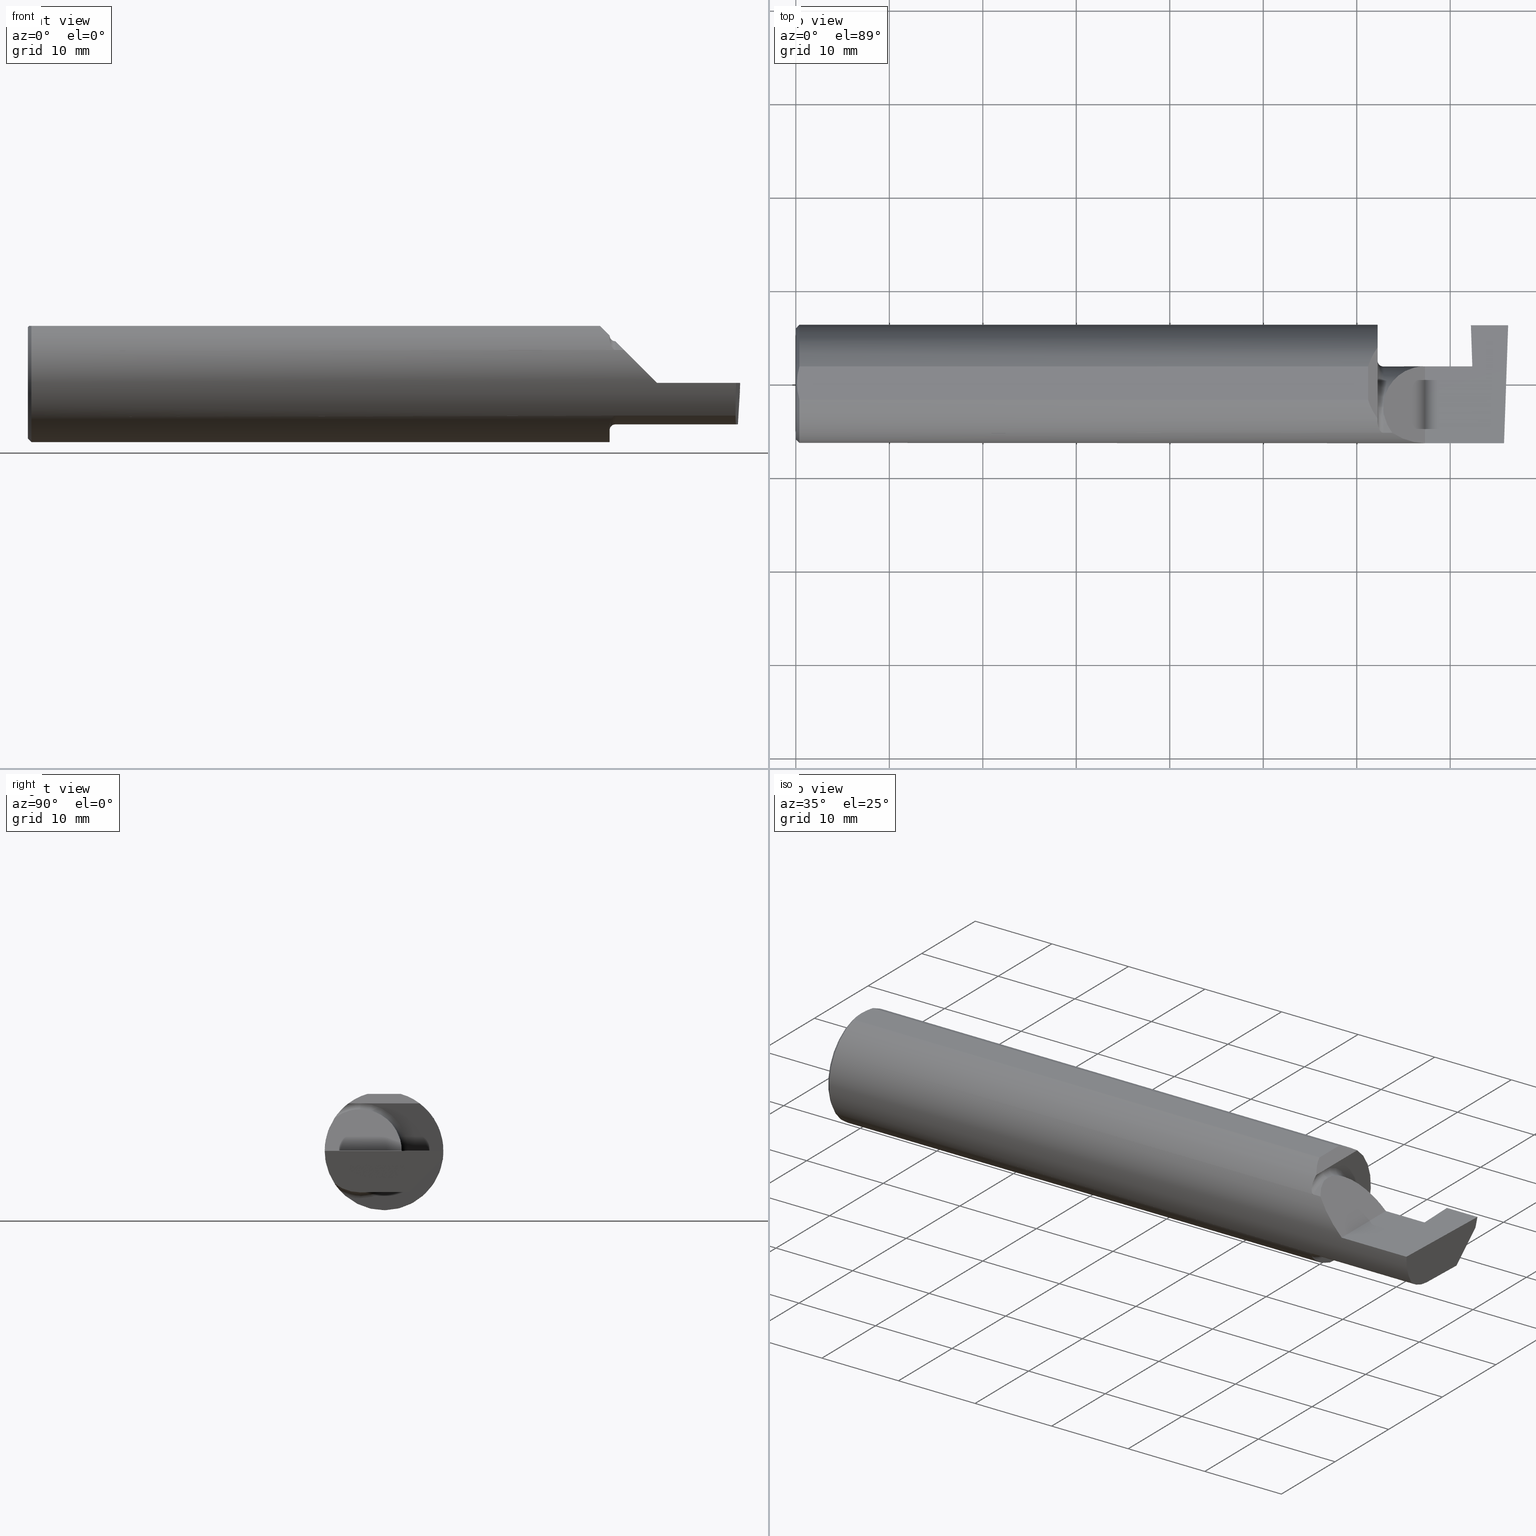
[diagram: canonical four-view strip — front | top / right | iso, engineering-drawing reading convention]
A machine part, canonical four-view strip (front | top / right | iso — engineering-drawing reading convention). The complete STEP part file that produces these views, byte-faithful:
ISO-10303-21;
HEADER;
FILE_DESCRIPTION (( 'STEP AP203' ),
    '1' );
FILE_NAME ('221565-GT156-8.STEP',
    '2024-07-22T23:14:21',
    ( '' ),
    ( '' ),
    'SwSTEP 2.0',
    'SolidWorks 2024',
    '' );
FILE_SCHEMA (( 'CONFIG_CONTROL_DESIGN' ));
ENDSEC;

DATA;
#1 = DIRECTION ( 'NONE',  ( 0.000000000000000000, -1.000000000000000000, 2.446352684939717727E-16 ) ) ;
#2 = DIRECTION ( 'NONE',  ( 1.000000000000000000, 0.000000000000000000, 0.000000000000000000 ) ) ;
#3 = AXIS2_PLACEMENT_3D ( 'NONE', #729, #275, #526 ) ;
#4 = AXIS2_PLACEMENT_3D ( 'NONE', #137, #91, #592 ) ;
#5 = EDGE_CURVE ( 'NONE', #783, #781, #539, .T. ) ;
#6 = PERSON_AND_ORGANIZATION_ROLE ( 'creator' ) ;
#7 = CARTESIAN_POINT ( 'NONE',  ( 2.825000000000000178, 0.2348243371481683328, -0.04599999999999999922 ) ) ;
#8 = CC_DESIGN_SECURITY_CLASSIFICATION ( #756, ( #316 ) ) ;
#9 = PRODUCT_DEFINITION ( 'UNKNOWN', '', #316, #508 ) ;
#10 = LOCAL_TIME ( 16, 14, 21.00000000000000000, #125 ) ;
#11 = CARTESIAN_POINT ( 'NONE',  ( 2.994767799596354418, 0.2473327124642303587, -0.1999314649951115241 ) ) ;
#12 = CARTESIAN_POINT ( 'NONE',  ( 2.842967111642932032, 0.2473489557307920195, 0.0007425128957728069183 ) ) ;
#13 = ORIENTED_EDGE ( 'NONE', *, *, #312, .F. ) ;
#14 = LINE ( 'NONE', #353, #471 ) ;
#15 = CARTESIAN_POINT ( 'NONE',  ( 2.487690731615568307, -0.1771157075472510889, 0.1623092683844330197 ) ) ;
#16 = ORIENTED_EDGE ( 'NONE', *, *, #519, .T. ) ;
#17 = CARTESIAN_POINT ( 'NONE',  ( 2.475000000000000977, -0.1008499999999999674, 0.1749999999999999889 ) ) ;
#18 = DIRECTION ( 'NONE',  ( -1.000000000000000000, -0.000000000000000000, -0.000000000000000000 ) ) ;
#19 = EDGE_LOOP ( 'NONE', ( #551, #355, #523, #739, #610 ) ) ;
#20 = ORIENTED_EDGE ( 'NONE', *, *, #429, .T. ) ;
#21 = LINE ( 'NONE', #538, #751 ) ;
#22 = CARTESIAN_POINT ( 'NONE',  ( 2.450000000000001066, -0.1716188362992555061, -0.1820560320165480750 ) ) ;
#23 = ORIENTED_EDGE ( 'NONE', *, *, #782, .F. ) ;
#24 = EDGE_LOOP ( 'NONE', ( #562, #233, #27 ) ) ;
#25 = CARTESIAN_POINT ( 'NONE',  ( 2.468876997637615478, -0.2068363917296600629, 0.1401586554522228911 ) ) ;
#26 = CARTESIAN_POINT ( 'NONE',  ( 2.475000000000001421, -0.1400387324517231857, 0.1750000000000000167 ) ) ;
#27 = ORIENTED_EDGE ( 'NONE', *, *, #106, .F. ) ;
#28 = ORIENTED_EDGE ( 'NONE', *, *, #189, .F. ) ;
#29 = VECTOR ( 'NONE', #256, 39.37007874015748854 ) ;
#30 = CARTESIAN_POINT ( 'NONE',  ( 2.845037492458067696, 0.2348243371481683328, -0.04599999999999999922 ) ) ;
#31 = CIRCLE ( 'NONE', #73, 0.2348499999999999754 ) ;
#32 = CARTESIAN_POINT ( 'NONE',  ( 2.450000000000000178, -0.1008499999999999674, 0.000000000000000000 ) ) ;
#33 = ORIENTED_EDGE ( 'NONE', *, *, #693, .T. ) ;
#34 = VERTEX_POINT ( 'NONE', #42 ) ;
#35 = DIRECTION ( 'NONE',  ( -1.000000000000000000, -0.000000000000000000, -0.000000000000000000 ) ) ;
#36 = EDGE_CURVE ( 'NONE', #604, #672, #276, .T. ) ;
#37 = CARTESIAN_POINT ( 'NONE',  ( 2.843000000000000416, 0.07414999999999999369, 6.735556484410550145E-17 ) ) ;
#38 = DIRECTION ( 'NONE',  ( 1.000000000000000000, 0.000000000000000000, 0.000000000000000000 ) ) ;
#39 = ORIENTED_EDGE ( 'NONE', *, *, #189, .T. ) ;
#40 = CARTESIAN_POINT ( 'NONE',  ( 2.854036419112083944, -0.01887343476265484349, -0.1749999999999999889 ) ) ;
#41 = ADVANCED_FACE ( 'NONE', ( #805 ), #504, .F. ) ;
#42 = CARTESIAN_POINT ( 'NONE',  ( 2.990479469570817006, 0.1058243371481679268, -0.1749999999999999889 ) ) ;
#43 = MANIFOLD_SOLID_BREP ( 'Front Angle', #699 ) ;
#44 = ORIENTED_EDGE ( 'NONE', *, *, #132, .T. ) ;
#45 = CARTESIAN_POINT ( 'NONE',  ( 2.418565128400055997, 0.09882123526961378301, 0.2314348715999461070 ) ) ;
#46 = CIRCLE ( 'NONE', #688, 0.1999999999999999833 ) ;
#47 = AXIS2_PLACEMENT_3D ( 'NONE', #70, #129, #505 ) ;
#48 = CARTESIAN_POINT ( 'NONE',  ( 2.993019781838999194, 0.1785693626775286258, -0.1750000000000000444 ) ) ;
#49 = CARTESIAN_POINT ( 'NONE',  ( 2.854047045968829632, 0.1058243371481679407, -0.1749999999999999334 ) ) ;
#50 = EDGE_CURVE ( 'NONE', #85, #362, #700, .T. ) ;
#51 = ORIENTED_EDGE ( 'NONE', *, *, #124, .F. ) ;
#52 = PLANE ( 'NONE',  #767 ) ;
#53 = DIRECTION ( 'NONE',  ( -0.7071067811865454633, 0.000000000000000000, 0.7071067811865495711 ) ) ;
#54 = CARTESIAN_POINT ( 'NONE',  ( 3.000000000000000444, 0.1058243371481678713, -0.1750000000000000167 ) ) ;
#55 =( BOUNDED_CURVE ( )  B_SPLINE_CURVE ( 3, ( #495, #119, #168, #571 ),
 .UNSPECIFIED., .F., .T. ) 
 B_SPLINE_CURVE_WITH_KNOTS ( ( 4, 4 ),
 ( 5.640485106395844106, 5.999305444832164547 ),
 .UNSPECIFIED. ) 
 CURVE ( )  GEOMETRIC_REPRESENTATION_ITEM ( )  RATIONAL_B_SPLINE_CURVE ( ( 1.000000000000000000, 0.9892994125303242736, 0.9892994125303242736, 1.000000000000000000 ) ) 
 REPRESENTATION_ITEM ( '' )  );
#56 = CARTESIAN_POINT ( 'NONE',  ( 2.650000000000000355, -0.2498499999999999610, 4.286263797015727350E-17 ) ) ;
#57 = DIRECTION ( 'NONE',  ( -1.000000000000000000, -0.000000000000000000, -0.000000000000000000 ) ) ;
#58 = PERSON_AND_ORGANIZATION_ROLE ( 'creator' ) ;
#59 = EDGE_CURVE ( 'NONE', #483, #630, #55, .T. ) ;
#60 = FACE_OUTER_BOUND ( 'NONE', #542, .T. ) ;
#61 = PERSON ( 'UNSPECIFIED', 'UNSPECIFIED', 'UNSPECIFIED', ('UNSPECIFIED'), ('UNSPECIFIED'), ('UNSPECIFIED') ) ;
#62 = CARTESIAN_POINT ( 'NONE',  ( 2.475000000000000089, -0.1008499999999999674, 0.000000000000000000 ) ) ;
#63 = FACE_OUTER_BOUND ( 'NONE', #425, .T. ) ;
#64 = APPROVAL_DATE_TIME ( #514, #379 ) ;
#65 = FACE_OUTER_BOUND ( 'NONE', #228, .T. ) ;
#66 = DIRECTION ( 'NONE',  ( 1.000000000000000000, 0.000000000000000000, 0.000000000000000000 ) ) ;
#67 = EDGE_CURVE ( 'NONE', #281, #340, #345, .T. ) ;
#68 = DIMENSIONAL_EXPONENTS ( 1.000000000000000000, 0.000000000000000000, 0.000000000000000000, 0.000000000000000000, 0.000000000000000000, 0.000000000000000000, 0.000000000000000000 ) ;
#69 = PERSON_AND_ORGANIZATION_ROLE ( 'classification_officer' ) ;
#70 = CARTESIAN_POINT ( 'NONE',  ( 0.000000000000000000, 0.000000000000000000, 0.000000000000000000 ) ) ;
#71 = DIRECTION ( 'NONE',  ( 1.000000000000000000, 0.000000000000000000, 0.000000000000000000 ) ) ;
#72 = VECTOR ( 'NONE', #769, 39.37007874015748143 ) ;
#73 = AXIS2_PLACEMENT_3D ( 'NONE', #287, #788, #86 ) ;
#74 = CARTESIAN_POINT ( 'NONE',  ( 2.650000000000000355, -0.2498499999999999610, 4.286263797015727350E-17 ) ) ;
#75 = DIRECTION ( 'NONE',  ( 8.522090287130865539E-05, 0.9999999963686987403, -2.446351747218454245E-16 ) ) ;
#76 = CC_DESIGN_PERSON_AND_ORGANIZATION_ASSIGNMENT ( #382, #69, ( #756 ) ) ;
#77 = CC_DESIGN_PERSON_AND_ORGANIZATION_ASSIGNMENT ( #752, #6, ( #316 ) ) ;
#78 = CARTESIAN_POINT ( 'NONE',  ( 0.004999999999999471013, 5.665694022114171174E-17, 0.2398500000000000076 ) ) ;
#79 = CARTESIAN_POINT ( 'NONE',  ( 2.450000000000000178, -0.1616050818046604332, -0.1905487340154980169 ) ) ;
#80 = CARTESIAN_POINT ( 'NONE',  ( 2.980479240051444378, -0.2080850024789291652, -0.1382955322609665250 ) ) ;
#81 = EDGE_CURVE ( 'NONE', #112, #34, #819, .T. ) ;
#82 = CARTESIAN_POINT ( 'NONE',  ( 2.845037492458067696, 0.07420629955631165287, -0.04619574797784884584 ) ) ;
#83 = ORIENTED_EDGE ( 'NONE', *, *, #184, .T. ) ;
#84 = AXIS2_PLACEMENT_3D ( 'NONE', #780, #219, #357 ) ;
#85 = VERTEX_POINT ( 'NONE', #485 ) ;
#86 = DIRECTION ( 'NONE',  ( 0.000000000000000000, 0.000000000000000000, 1.000000000000000000 ) ) ;
#87 = DIRECTION ( 'NONE',  ( 1.000000000000000000, 0.000000000000000000, 0.000000000000000000 ) ) ;
#88 = ORIENTED_EDGE ( 'NONE', *, *, #735, .T. ) ;
#89 = ORIENTED_EDGE ( 'NONE', *, *, #258, .T. ) ;
#90 = B_SPLINE_CURVE_WITH_KNOTS ( 'NONE', 3,
 ( #413, #789, #785, #733, #774, #294, #418, #719, #532, #407, #22, #79 ),
 .UNSPECIFIED., .F., .F.,
 ( 4, 2, 2, 2, 2, 4 ),
 ( 1.964491429111597470E-07, 0.0001260981470478301006, 0.0002519998449527490283, 0.0005038032407626139887, 0.001007410032382344885, 0.002014623615621811883 ),
 .UNSPECIFIED. ) ;
#91 = DIRECTION ( 'NONE',  ( -0.000000000000000000, 1.000000000000000000, 1.224646799147353207E-16 ) ) ;
#92 = APPROVAL_PERSON_ORGANIZATION ( #743, #232, #322 ) ;
#93 = LINE ( 'NONE', #283, #674 ) ;
#94 = ORIENTED_EDGE ( 'NONE', *, *, #481, .F. ) ;
#95 = EDGE_CURVE ( 'NONE', #720, #340, #317, .T. ) ;
#96 = CARTESIAN_POINT ( 'NONE',  ( 2.450000000000000178, -0.1616050818046604332, 0.1905487340154980169 ) ) ;
#97 = DIRECTION ( 'NONE',  ( 0.000000000000000000, -0.000000000000000000, 1.000000000000000000 ) ) ;
#98 = ORIENTED_EDGE ( 'NONE', *, *, #193, .T. ) ;
#99 = EDGE_LOOP ( 'NONE', ( #234, #734, #677, #776 ) ) ;
#100 = AXIS2_PLACEMENT_3D ( 'NONE', #567, #430, #427 ) ;
#101 =( CONVERSION_BASED_UNIT ( 'INCH', #241 ) LENGTH_UNIT ( ) NAMED_UNIT ( #68 ) );
#102 = LINE ( 'NONE', #48, #306 ) ;
#103 = VERTEX_POINT ( 'NONE', #754 ) ;
#104 = ORIENTED_EDGE ( 'NONE', *, *, #512, .F. ) ;
#105 =( NAMED_UNIT ( * ) SI_UNIT ( $, .STERADIAN. ) SOLID_ANGLE_UNIT ( ) );
#106 = EDGE_CURVE ( 'NONE', #459, #672, #623, .T. ) ;
#107 = CARTESIAN_POINT ( 'NONE',  ( 3.000000000000000444, -0.2500000000000000555, 0.000000000000000000 ) ) ;
#108 = ORIENTED_EDGE ( 'NONE', *, *, #36, .F. ) ;
#109 = ORIENTED_EDGE ( 'NONE', *, *, #569, .T. ) ;
#110 = EDGE_CURVE ( 'NONE', #428, #223, #188, .T. ) ;
#111 = ORIENTED_EDGE ( 'NONE', *, *, #580, .F. ) ;
#112 = VERTEX_POINT ( 'NONE', #49 ) ;
#113 = CARTESIAN_POINT ( 'NONE',  ( 2.410150000000002013, 0.06997856814768359246, 0.2398500000000000076 ) ) ;
#114 = AXIS2_PLACEMENT_3D ( 'NONE', #177, #304, #631 ) ;
#115 = CARTESIAN_POINT ( 'NONE',  ( 2.475000000000000977, -0.1008499999999999674, 0.1749999999999999889 ) ) ;
#116 = VERTEX_POINT ( 'NONE', #311 ) ;
#117 = DIRECTION ( 'NONE',  ( -0.03487823687994804495, 0.9993915692020550745, -2.444309580554223547E-16 ) ) ;
#118 = DIRECTION ( 'NONE',  ( -0.04932528479609450678, 0.7062460676987120101, 0.7062460676987096786 ) ) ;
#119 = CARTESIAN_POINT ( 'NONE',  ( 2.431992138630819422, -0.1256992788918502302, 0.2180078613691825984 ) ) ;
#120 = EDGE_CURVE ( 'NONE', #441, #116, #221, .T. ) ;
#121 = CALENDAR_DATE ( 2024, 22, 7 ) ;
#122 = DIRECTION ( 'NONE',  ( 0.03487823687994805882, -0.9993915692020550745, -4.023838201466321508E-18 ) ) ;
#123 = CARTESIAN_POINT ( 'NONE',  ( 2.843000000000000416, -0.1008499999999999674, 0.000000000000000000 ) ) ;
#124 = EDGE_CURVE ( 'NONE', #672, #352, #320, .T. ) ;
#125 = COORDINATED_UNIVERSAL_TIME_OFFSET ( 8, 0, .BEHIND. ) ;
#126 = CARTESIAN_POINT ( 'NONE',  ( 2.511704467739034552, -0.2080850024789292485, 0.1382955322609664139 ) ) ;
#127 = CARTESIAN_POINT ( 'NONE',  ( 2.650000000000000355, 0.07414999999999997982, 4.286263797015727350E-17 ) ) ;
#128 =( BOUNDED_CURVE ( )  B_SPLINE_CURVE ( 3, ( #113, #45, #293, #489 ),
 .UNSPECIFIED., .F., .T. ) 
 B_SPLINE_CURVE_WITH_KNOTS ( ( 4, 4 ),
 ( 0.2838798623474212968, 0.6427002007837423481 ),
 .UNSPECIFIED. ) 
 CURVE ( )  GEOMETRIC_REPRESENTATION_ITEM ( )  RATIONAL_B_SPLINE_CURVE ( ( 1.000000000000000000, 0.9892994125303242736, 0.9892994125303242736, 1.000000000000000000 ) ) 
 REPRESENTATION_ITEM ( '' )  );
#129 = DIRECTION ( 'NONE',  ( 1.000000000000000000, 0.000000000000000000, 0.000000000000000000 ) ) ;
#130 = CARTESIAN_POINT ( 'NONE',  ( 2.410150000000002013, 0.06997856814768359246, 0.2398500000000000076 ) ) ;
#131 = CARTESIAN_POINT ( 'NONE',  ( 3.000000000000000444, 0.1783256080881261973, -0.1750000000000000444 ) ) ;
#132 = EDGE_CURVE ( 'NONE', #604, #483, #365, .T. ) ;
#133 = LINE ( 'NONE', #455, #72 ) ;
#134 = DIRECTION ( 'NONE',  ( 0.000000000000000000, 0.000000000000000000, -1.000000000000000000 ) ) ;
#135 = AXIS2_PLACEMENT_3D ( 'NONE', #387, #753, #191 ) ;
#136 = B_SPLINE_CURVE_WITH_KNOTS ( 'NONE', 3,
 ( #78, #356, #605, #665, #338, #521 ),
 .UNSPECIFIED., .F., .F.,
 ( 4, 2, 4 ),
 ( 0.007845223120669340966, 0.008734561288375079086, 0.009623899456080817205 ),
 .UNSPECIFIED. ) ;
#137 = CARTESIAN_POINT ( 'NONE',  ( 2.475000000000000089, -0.1008499999999999536, -0.1999999999999999833 ) ) ;
#138 = DIRECTION ( 'NONE',  ( -1.860109918781714014E-16, 0.9999992573649232330, 0.001218716374663524060 ) ) ;
#139 = EDGE_CURVE ( 'NONE', #680, #103, #511, .T. ) ;
#140 = ORIENTED_EDGE ( 'NONE', *, *, #777, .F. ) ;
#141 = CIRCLE ( 'NONE', #478, 0.2498499999999999888 ) ;
#142 = LINE ( 'NONE', #656, #436 ) ;
#143 = CARTESIAN_POINT ( 'NONE',  ( 2.450000000000000178, 0.2741500000000000048, 0.000000000000000000 ) ) ;
#144 = VERTEX_POINT ( 'NONE', #710 ) ;
#145 = FACE_OUTER_BOUND ( 'NONE', #277, .T. ) ;
#146 = CARTESIAN_POINT ( 'NONE',  ( 3.000000000000000444, -0.2498499999999999888, 0.2398500000000000076 ) ) ;
#147 =( BOUNDED_CURVE ( )  B_SPLINE_CURVE ( 3, ( #683, #40, #804, #613 ),
 .UNSPECIFIED., .F., .T. ) 
 B_SPLINE_CURVE_WITH_KNOTS ( ( 4, 4 ),
 ( 3.140373936913444908, 4.443983221546779383 ),
 .UNSPECIFIED. ) 
 CURVE ( )  GEOMETRIC_REPRESENTATION_ITEM ( )  RATIONAL_B_SPLINE_CURVE ( ( 1.000000000000000000, 0.8633269052189369575, 0.8633269052189369575, 1.000000000000000000 ) ) 
 REPRESENTATION_ITEM ( '' )  );
#148 = ORIENTED_EDGE ( 'NONE', *, *, #170, .T. ) ;
#149 = CIRCLE ( 'NONE', #332, 0.1999999999999999833 ) ;
#150 = VECTOR ( 'NONE', #118, 39.37007874015748143 ) ;
#151 = ORIENTED_EDGE ( 'NONE', *, *, #711, .T. ) ;
#152 = CARTESIAN_POINT ( 'NONE',  ( 3.000000000000000444, -0.1008499999999999813, -0.1749999999999999889 ) ) ;
#153 = EDGE_CURVE ( 'NONE', #163, #655, #202, .T. ) ;
#154 = DIRECTION ( 'NONE',  ( 0.04426438787457080692, 0.001217521851804792771, -0.9990191097304544909 ) ) ;
#155 = EDGE_LOOP ( 'NONE', ( #358, #626, #557, #536, #716, #28 ) ) ;
#156 = ORIENTED_EDGE ( 'NONE', *, *, #120, .T. ) ;
#157 = CARTESIAN_POINT ( 'NONE',  ( 2.456159563508733878, -0.1933019864360849549, 0.1584298865564831293 ) ) ;
#158 = CC_DESIGN_APPROVAL ( #379, ( #316 ) ) ;
#159 = FACE_OUTER_BOUND ( 'NONE', #24, .T. ) ;
#160 = VERTEX_POINT ( 'NONE', #771 ) ;
#161 = ORIENTED_EDGE ( 'NONE', *, *, #612, .T. ) ;
#162 = LINE ( 'NONE', #167, #291 ) ;
#163 = VERTEX_POINT ( 'NONE', #644 ) ;
#164 = EDGE_CURVE ( 'NONE', #655, #416, #325, .T. ) ;
#165 = ORIENTED_EDGE ( 'NONE', *, *, #350, .F. ) ;
#166 = AXIS2_PLACEMENT_3D ( 'NONE', #702, #192, #443 ) ;
#167 = CARTESIAN_POINT ( 'NONE',  ( 2.450000000000000178, -0.2500000000000000555, 0.2000000000000012601 ) ) ;
#168 = CARTESIAN_POINT ( 'NONE',  ( 2.418565128400055997, -0.09882123526961388016, 0.2314348715999460515 ) ) ;
#169 = ORIENTED_EDGE ( 'NONE', *, *, #639, .T. ) ;
#170 = EDGE_CURVE ( 'NONE', #811, #416, #704, .T. ) ;
#171 = FACE_OUTER_BOUND ( 'NONE', #99, .T. ) ;
#172 = LINE ( 'NONE', #319, #595 ) ;
#173 = CARTESIAN_POINT ( 'NONE',  ( 0.004999999999999748569, 0.01185123536186986730, 0.2398500000000000354 ) ) ;
#174 = ORIENTED_EDGE ( 'NONE', *, *, #792, .F. ) ;
#175 =( NAMED_UNIT ( * ) PLANE_ANGLE_UNIT ( ) SI_UNIT ( $, .RADIAN. ) );
#176 = CC_DESIGN_PERSON_AND_ORGANIZATION_ASSIGNMENT ( #577, #196, ( #316 ) ) ;
#177 = CARTESIAN_POINT ( 'NONE',  ( 2.450000000000000178, 0.000000000000000000, 0.000000000000000000 ) ) ;
#178 = DIRECTION ( 'NONE',  ( -0.03432699337968036363, -0.2586665114180216052, -0.9653565628286482347 ) ) ;
#179 = ORIENTED_EDGE ( 'NONE', *, *, #217, .F. ) ;
#180 = CARTESIAN_POINT ( 'NONE',  ( 0.01499999999999999944, 0.000000000000000000, 0.000000000000000000 ) ) ;
#181 = AXIS2_PLACEMENT_3D ( 'NONE', #246, #57, #624 ) ;
#182 = AXIS2_PLACEMENT_3D ( 'NONE', #442, #697, #449 ) ;
#183 = DIRECTION ( 'NONE',  ( 0.02616100201822768243, -0.0009135623211515302069, 0.9996573249755575929 ) ) ;
#184 = EDGE_CURVE ( 'NONE', #604, #488, #46, .T. ) ;
#185 = CARTESIAN_POINT ( 'NONE',  ( 2.982632426700503103, -0.2498495826666993769, -0.0004566631977228521443 ) ) ;
#186 = APPROVAL_DATE_TIME ( #764, #563 ) ;
#187 = PLANE ( 'NONE',  #344 ) ;
#188 = LINE ( 'NONE', #695, #251 ) ;
#189 = EDGE_CURVE ( 'NONE', #416, #160, #133, .T. ) ;
#190 = CC_DESIGN_APPROVAL ( #232, ( #9 ) ) ;
#191 = DIRECTION ( 'NONE',  ( -0.7071067811865454633, 0.000000000000000000, 0.7071067811865495711 ) ) ;
#192 = DIRECTION ( 'NONE',  ( 0.000000000000000000, -0.9659258262890680902, 0.2588190451025216832 ) ) ;
#193 = EDGE_CURVE ( 'NONE', #215, #281, #450, .T. ) ;
#194 = AXIS2_PLACEMENT_3D ( 'NONE', #582, #2, #389 ) ;
#195 = CARTESIAN_POINT ( 'NONE',  ( 2.450000000000000178, -0.2500000000000000555, 0.2000000000000012601 ) ) ;
#196 = PERSON_AND_ORGANIZATION_ROLE ( 'design_supplier' ) ;
#197 = ADVANCED_FACE ( 'NONE', ( #60 ), #327, .T. ) ;
#198 = CARTESIAN_POINT ( 'NONE',  ( 2.860520154598983122, -0.2548677727907585067, 1.708135462159229949E-17 ) ) ;
#199 = FACE_OUTER_BOUND ( 'NONE', #554, .T. ) ;
#200 = LOCAL_TIME ( 16, 14, 21.00000000000000000, #518 ) ;
#201 = APPROVAL_ROLE ( '' ) ;
#202 = LINE ( 'NONE', #650, #499 ) ;
#203 = CARTESIAN_POINT ( 'NONE',  ( 2.458182335268384477, -0.1972192205116131691, 0.1535061413537209818 ) ) ;
#204 = CARTESIAN_POINT ( 'NONE',  ( 2.450000000000000178, -0.1008499999999999674, 0.000000000000000000 ) ) ;
#205 = EDGE_CURVE ( 'NONE', #144, #604, #149, .T. ) ;
#206 = VECTOR ( 'NONE', #71, 39.37007874015748143 ) ;
#207 = ORIENTED_EDGE ( 'NONE', *, *, #258, .F. ) ;
#208 = CARTESIAN_POINT ( 'NONE',  ( 2.473329956043142985, -0.2080850024798590603, 0.1382955322595675329 ) ) ;
#209 = FACE_OUTER_BOUND ( 'NONE', #609, .T. ) ;
#210 = EDGE_LOOP ( 'NONE', ( #730, #98, #410, #88, #463 ) ) ;
#211 = EDGE_CURVE ( 'NONE', #790, #404, #384, .T. ) ;
#212 = ORIENTED_EDGE ( 'NONE', *, *, #153, .F. ) ;
#213 = CARTESIAN_POINT ( 'NONE',  ( 2.845037492458067696, 0.07420629955631044550, -0.04619574797784882503 ) ) ;
#214 = CARTESIAN_POINT ( 'NONE',  ( 2.475000000000000089, -0.1008499999999999674, 0.000000000000000000 ) ) ;
#215 = VERTEX_POINT ( 'NONE', #130 ) ;
#216 = EDGE_LOOP ( 'NONE', ( #482, #614, #212 ) ) ;
#217 = EDGE_CURVE ( 'NONE', #488, #220, #434, .T. ) ;
#218 = DIRECTION ( 'NONE',  ( -1.000000000000000000, -0.000000000000000000, -0.000000000000000000 ) ) ;
#219 = DIRECTION ( 'NONE',  ( -1.000000000000000000, -0.000000000000000000, -0.000000000000000000 ) ) ;
#220 = VERTEX_POINT ( 'NONE', #522 ) ;
#221 = CIRCLE ( 'NONE', #406, 0.1749999999999999889 ) ;
#222 = AXIS2_PLACEMENT_3D ( 'NONE', #242, #236, #53 ) ;
#223 = VERTEX_POINT ( 'NONE', #579 ) ;
#224 = CARTESIAN_POINT ( 'NONE',  ( 2.650000000000000355, -0.2500000000000000555, 4.286263797015727350E-17 ) ) ;
#225 = ADVANCED_FACE ( 'NONE', ( #199 ), #761, .F. ) ;
#226 = FACE_OUTER_BOUND ( 'NONE', #528, .T. ) ;
#227 = ORIENTED_EDGE ( 'NONE', *, *, #429, .F. ) ;
#228 = EDGE_LOOP ( 'NONE', ( #801, #20, #347, #148, #39, #414 ) ) ;
#229 = FACE_OUTER_BOUND ( 'NONE', #378, .T. ) ;
#230 = CONICAL_SURFACE ( 'NONE', #615, 0.2498499999999999888, 0.7853981633974485010 ) ;
#231 = CYLINDRICAL_SURFACE ( 'NONE', #371, 0.1749999999999999889 ) ;
#232 = APPROVAL ( #451, 'UNSPECIFIED' ) ;
#233 = ORIENTED_EDGE ( 'NONE', *, *, #361, .T. ) ;
#234 = ORIENTED_EDGE ( 'NONE', *, *, #424, .T. ) ;
#235 = DIRECTION ( 'NONE',  ( -2.395410842222853988E-16, -0.9999992573649233440, -0.001218716374663539239 ) ) ;
#236 = DIRECTION ( 'NONE',  ( -0.7071067811865495711, 0.000000000000000000, -0.7071067811865454633 ) ) ;
#237 = DIRECTION ( 'NONE',  ( 0.000000000000000000, 0.000000000000000000, 1.000000000000000000 ) ) ;
#238 = VECTOR ( 'NONE', #385, 39.37007874015748143 ) ;
#239 = ORIENTED_EDGE ( 'NONE', *, *, #5, .F. ) ;
#240 = AXIS2_PLACEMENT_3D ( 'NONE', #620, #550, #439 ) ;
#241 = LENGTH_MEASURE_WITH_UNIT ( LENGTH_MEASURE( 0.02539999999999999897 ), #622 );
#242 = CARTESIAN_POINT ( 'NONE',  ( 2.650000000000000355, -0.2500000000000000555, 4.286263797015727350E-17 ) ) ;
#243 = CARTESIAN_POINT ( 'NONE',  ( 2.981341028891338674, -0.2497592792593448796, -0.04986346618385834734 ) ) ;
#244 = EDGE_LOOP ( 'NONE', ( #51, #403, #750, #491 ) ) ;
#245 = CARTESIAN_POINT ( 'NONE',  ( 2.983262242683407006, -0.1008499999999999674, -0.1749999999999999889 ) ) ;
#246 = CARTESIAN_POINT ( 'NONE',  ( 2.475000000000000089, -0.1008499999999999674, 0.000000000000000000 ) ) ;
#247 = EDGE_LOOP ( 'NONE', ( #736, #670, #23, #664, #778 ) ) ;
#248 = DIRECTION ( 'NONE',  ( -1.000000000000000000, 0.000000000000000000, 1.224646799147351482E-16 ) ) ;
#249 = ORIENTED_EDGE ( 'NONE', *, *, #487, .F. ) ;
#250 = COORDINATED_UNIVERSAL_TIME_OFFSET ( 8, 0, .BEHIND. ) ;
#251 = VECTOR ( 'NONE', #178, 39.37007874015748854 ) ;
#252 = ADVANCED_FACE ( 'NONE', ( #63 ), #261, .T. ) ;
#253 = CARTESIAN_POINT ( 'NONE',  ( 3.000000000000000444, 0.2471499999999999531, -7.549931466865102584E-16 ) ) ;
#254 = ORIENTED_EDGE ( 'NONE', *, *, #342, .F. ) ;
#255 = CARTESIAN_POINT ( 'NONE',  ( 2.511704467739034552, -0.2080850024789292485, 0.1382955322609664139 ) ) ;
#256 = DIRECTION ( 'NONE',  ( 0.06975643500180647716, 0.001215747646128942329, -0.9975633121428932881 ) ) ;
#257 = APPROVAL_PERSON_ORGANIZATION ( #759, #563, #585 ) ;
#258 = EDGE_CURVE ( 'NONE', #483, #144, #572, .T. ) ;
#259 = CALENDAR_DATE ( 2024, 22, 7 ) ;
#260 = CARTESIAN_POINT ( 'NONE',  ( 2.849037608447156700, 0.07414999999999992430, -7.830269480060695625E-18 ) ) ;
#261 = PLANE ( 'NONE',  #606 ) ;
#262 = EDGE_CURVE ( 'NONE', #352, #441, #266, .T. ) ;
#263 = PERSON_AND_ORGANIZATION ( #61, #731 ) ;
#264 = CARTESIAN_POINT ( 'NONE',  ( 2.450000000000000178, -0.1008499999999999674, 0.2000000000000012601 ) ) ;
#265 = TOROIDAL_SURFACE ( 'NONE', #486, 0.1999999999999999833, 0.02499999999999994241 ) ;
#266 = LINE ( 'NONE', #647, #206 ) ;
#267 = APPROVAL_DATE_TIME ( #820, #232 ) ;
#268 = DIRECTION ( 'NONE',  ( -0.04317993108637931121, -0.7064472710512011977, -0.7064472710511988662 ) ) ;
#269 = DIRECTION ( 'NONE',  ( 0.000000000000000000, -1.000000000000000000, 0.000000000000000000 ) ) ;
#270 = FACE_OUTER_BOUND ( 'NONE', #244, .T. ) ;
#271 = ADVANCED_FACE ( 'NONE', ( #334 ), #587, .F. ) ;
#272 = DIRECTION ( 'NONE',  ( -1.000000000000000000, -0.000000000000000000, -0.000000000000000000 ) ) ;
#273 = DIRECTION ( 'NONE',  ( 0.000000000000000000, 0.000000000000000000, 1.000000000000000000 ) ) ;
#274 = ADVANCED_FACE ( 'NONE', ( #607 ), #339, .T. ) ;
#275 = DIRECTION ( 'NONE',  ( -1.000000000000000000, -0.000000000000000000, -0.000000000000000000 ) ) ;
#276 = CIRCLE ( 'NONE', #240, 0.02499999999999993894 ) ;
#277 = EDGE_LOOP ( 'NONE', ( #409, #462, #109, #366, #280, #207, #786, #13, #351, #174, #712, #597, #435, #254, #690, #747 ) ) ;
#278 = CARTESIAN_POINT ( 'NONE',  ( 2.981893741990786495, -0.1400387324517231025, -0.1750000000000000167 ) ) ;
#279 = LINE ( 'NONE', #82, #818 ) ;
#280 = ORIENTED_EDGE ( 'NONE', *, *, #643, .F. ) ;
#281 = VERTEX_POINT ( 'NONE', #480 ) ;
#282 = LINE ( 'NONE', #224, #724 ) ;
#283 = CARTESIAN_POINT ( 'NONE',  ( 2.982660284539054629, -0.2493944837933358694, 2.123502703737254632E-18 ) ) ;
#284 = ORIENTED_EDGE ( 'NONE', *, *, #537, .T. ) ;
#285 = ADVANCED_FACE ( 'NONE', ( #470 ), #265, .F. ) ;
#286 = EDGE_LOOP ( 'NONE', ( #179, #726, #431, #360 ) ) ;
#287 = CARTESIAN_POINT ( 'NONE',  ( 0.000000000000000000, 0.000000000000000000, 0.000000000000000000 ) ) ;
#288 = CARTESIAN_POINT ( 'NONE',  ( 2.475000000000000977, -0.1008499999999999674, 0.1749999999999999889 ) ) ;
#289 = ORIENTED_EDGE ( 'NONE', *, *, #711, .F. ) ;
#290 = VECTOR ( 'NONE', #38, 39.37007874015748143 ) ;
#291 = VECTOR ( 'NONE', #814, 39.37007874015748143 ) ;
#292 = ORIENTED_EDGE ( 'NONE', *, *, #95, .F. ) ;
#293 = CARTESIAN_POINT ( 'NONE',  ( 2.431992138630819422, 0.1256992788918501747, 0.2180078613691826261 ) ) ;
#294 = CARTESIAN_POINT ( 'NONE',  ( 2.464302603425053029, -0.2041009206016214106, -0.1441313430770037873 ) ) ;
#295 = ORIENTED_EDGE ( 'NONE', *, *, #262, .T. ) ;
#296 = EDGE_LOOP ( 'NONE', ( #663, #796, #419, #676, #530 ) ) ;
#297 = DIRECTION ( 'NONE',  ( 0.000000000000000000, 0.000000000000000000, 1.000000000000000000 ) ) ;
#298 = LOCAL_TIME ( 16, 14, 21.00000000000000000, #816 ) ;
#299 = APPROVAL_PERSON_ORGANIZATION ( #766, #379, #201 ) ;
#300 = ADVANCED_FACE ( 'NONE', ( #159 ), #231, .T. ) ;
#301 = DIRECTION ( 'NONE',  ( -1.224646799147351482E-16, 0.000000000000000000, -1.000000000000000000 ) ) ;
#302 = ORIENTED_EDGE ( 'NONE', *, *, #735, .F. ) ;
#303 = CARTESIAN_POINT ( 'NONE',  ( 2.854047045968830520, -2.765007429205793787, -0.1784987322808410659 ) ) ;
#304 = DIRECTION ( 'NONE',  ( 1.000000000000000000, 0.000000000000000000, 0.000000000000000000 ) ) ;
#305 = EDGE_LOOP ( 'NONE', ( #111, #400, #140, #420, #547, #363, #496 ) ) ;
#306 = VECTOR ( 'NONE', #691, 39.37007874015748854 ) ;
#307 = VERTEX_POINT ( 'NONE', #398 ) ;
#308 = CIRCLE ( 'NONE', #393, 0.2348499999999999754 ) ;
#309 = PERSON_AND_ORGANIZATION_ROLE ( 'design_owner' ) ;
#310 = CARTESIAN_POINT ( 'NONE',  ( 2.845037492458067696, 0.06794054266098431549, -0.04620338416404774079 ) ) ;
#311 = CARTESIAN_POINT ( 'NONE',  ( 2.843000000000000416, 0.07414987299205413884, -0.0002108382441793281274 ) ) ;
#312 = EDGE_CURVE ( 'NONE', #404, #630, #465, .T. ) ;
#313 = ORIENTED_EDGE ( 'NONE', *, *, #475, .T. ) ;
#314 = DIRECTION ( 'NONE',  ( 1.000000000000000000, 0.000000000000000000, 0.000000000000000000 ) ) ;
#315 = CARTESIAN_POINT ( 'NONE',  ( 2.977412177158956563, -0.2496672875357696664, -0.1999314649951114686 ) ) ;
#316 = PRODUCT_DEFINITION_FORMATION_WITH_SPECIFIED_SOURCE ( 'ANY', '', #775, .NOT_KNOWN. ) ;
#317 = LINE ( 'NONE', #800, #457 ) ;
#318 = CALENDAR_DATE ( 2024, 22, 7 ) ;
#319 = CARTESIAN_POINT ( 'NONE',  ( 0.01499999999999999944, 0.000000000000000000, -0.2498499999999999888 ) ) ;
#320 =( BOUNDED_CURVE ( )  B_SPLINE_CURVE ( 3, ( #115, #815, #330, #127 ),
 .UNSPECIFIED., .F., .F. ) 
 B_SPLINE_CURVE_WITH_KNOTS ( ( 4, 4 ),
 ( 0.000000000000000000, 1.570796326794896558 ),
 .UNSPECIFIED. ) 
 CURVE ( )  GEOMETRIC_REPRESENTATION_ITEM ( )  RATIONAL_B_SPLINE_CURVE ( ( 1.000000000000000000, 0.8047378541243649375, 0.8047378541243649375, 1.000000000000000000 ) ) 
 REPRESENTATION_ITEM ( '' )  );
#321 = CARTESIAN_POINT ( 'NONE',  ( 0.004999999999999471013, 5.665694022114171174E-17, 0.2398500000000000076 ) ) ;
#322 = APPROVAL_ROLE ( '' ) ;
#323 = TOROIDAL_SURFACE ( 'NONE', #3, 0.1999999999999999833, 0.02499999999999994241 ) ;
#324 = FACE_OUTER_BOUND ( 'NONE', #591, .T. ) ;
#325 = LINE ( 'NONE', #448, #29 ) ;
#326 = DIRECTION ( 'NONE',  ( -1.000000000000000000, -0.000000000000000000, -0.000000000000000000 ) ) ;
#327 = CYLINDRICAL_SURFACE ( 'NONE', #445, 0.1749999999999999889 ) ;
#328 = B_SPLINE_CURVE_WITH_KNOTS ( 'NONE', 3,
 ( #96, #773, #709, #718, #728, #157, #203, #524, #460, #531, #25, #341, #208, #401 ),
 .UNSPECIFIED., .F., .F.,
 ( 4, 2, 2, 2, 2, 2, 4 ),
 ( 0.0003834465838148164922, 0.0008781406165086649927, 0.001372834649202513656, 0.001867528681896362319, 0.002114875698243290879, 0.002238549206416755484, 0.002362222714590220523 ),
 .UNSPECIFIED. ) ;
#329 = PLANE ( 'NONE',  #515 ) ;
#330 = CARTESIAN_POINT ( 'NONE',  ( 2.547487373415292744, 0.07414999999999996594, 0.1025126265847083745 ) ) ;
#331 = CARTESIAN_POINT ( 'NONE',  ( 4.499279347985559139E-32, -0.2498499999999999610, 3.673940397442053459E-16 ) ) ;
#332 = AXIS2_PLACEMENT_3D ( 'NONE', #458, #765, #590 ) ;
#333 = AXIS2_PLACEMENT_3D ( 'NONE', #62, #326, #447 ) ;
#334 = FACE_OUTER_BOUND ( 'NONE', #346, .T. ) ;
#335 = ADVANCED_FACE ( 'NONE', ( #599 ), #359, .F. ) ;
#336 = DIRECTION ( 'NONE',  ( 0.000000000000000000, 0.000000000000000000, 1.000000000000000000 ) ) ;
#337 = EDGE_CURVE ( 'NONE', #116, #655, #279, .T. ) ;
#338 = CARTESIAN_POINT ( 'NONE',  ( 0.01180609504125294286, -0.05857511741890332468, 0.2398500000000000354 ) ) ;
#339 = PLANE ( 'NONE',  #392 ) ;
#340 = VERTEX_POINT ( 'NONE', #354 ) ;
#341 = CARTESIAN_POINT ( 'NONE',  ( 2.471718393013769166, -0.2077830475237241181, 0.1387513848711936504 ) ) ;
#342 = EDGE_CURVE ( 'NONE', #362, #220, #90, .T. ) ;
#343 = DIRECTION ( 'NONE',  ( 0.000000000000000000, 0.000000000000000000, 1.000000000000000000 ) ) ;
#344 = AXIS2_PLACEMENT_3D ( 'NONE', #11, #694, #510 ) ;
#345 = B_SPLINE_CURVE_WITH_KNOTS ( 'NONE', 3,
 ( #741, #629, #746, #632, #173, #321 ),
 .UNSPECIFIED., .F., .F.,
 ( 4, 2, 4 ),
 ( 0.006064768674679246394, 0.006954995897674293680, 0.007845223120669340966 ),
 .UNSPECIFIED. ) ;
#346 = EDGE_LOOP ( 'NONE', ( #376, #169, #681, #658 ) ) ;
#347 = ORIENTED_EDGE ( 'NONE', *, *, #717, .T. ) ;
#348 = DIRECTION ( 'NONE',  ( -1.000000000000000000, -0.000000000000000000, -0.000000000000000000 ) ) ;
#349 = DIRECTION ( 'NONE',  ( 0.000000000000000000, -0.7071067811865486830, -0.7071067811865463515 ) ) ;
#350 = EDGE_CURVE ( 'NONE', #616, #428, #93, .T. ) ;
#351 = ORIENTED_EDGE ( 'NONE', *, *, #211, .F. ) ;
#352 = VERTEX_POINT ( 'NONE', #666 ) ;
#353 = CARTESIAN_POINT ( 'NONE',  ( 2.410150000000002013, -0.2498499999999999888, 0.2398500000000000076 ) ) ;
#354 = CARTESIAN_POINT ( 'NONE',  ( 0.004999999999999471013, 5.665694022114171174E-17, 0.2398500000000000076 ) ) ;
#355 = ORIENTED_EDGE ( 'NONE', *, *, #95, .T. ) ;
#356 = CARTESIAN_POINT ( 'NONE',  ( 0.004999999999999737293, -0.01183939972798750233, 0.2398500000000000631 ) ) ;
#357 = DIRECTION ( 'NONE',  ( 0.000000000000000000, 0.000000000000000000, 1.000000000000000000 ) ) ;
#358 = ORIENTED_EDGE ( 'NONE', *, *, #164, .F. ) ;
#359 = TOROIDAL_SURFACE ( 'NONE', #84, 0.1999999999999999833, 0.02499999999999994241 ) ;
#360 = ORIENTED_EDGE ( 'NONE', *, *, #342, .T. ) ;
#361 = EDGE_CURVE ( 'NONE', #601, #672, #396, .T. ) ;
#362 = VERTEX_POINT ( 'NONE', #540 ) ;
#363 = ORIENTED_EDGE ( 'NONE', *, *, #262, .F. ) ;
#364 = CARTESIAN_POINT ( 'NONE',  ( 2.843689495973013681, 0.07413112468343002748, -0.01577237022675139974 ) ) ;
#365 = LINE ( 'NONE', #195, #513 ) ;
#366 = ORIENTED_EDGE ( 'NONE', *, *, #707, .F. ) ;
#367 = PERSON_AND_ORGANIZATION ( #61, #731 ) ;
#368 = CARTESIAN_POINT ( 'NONE',  ( 2.843000000000000416, 0.07414987299205413884, -0.0002108382441793281274 ) ) ;
#369 = ADVANCED_FACE ( 'NONE', ( #226 ), #323, .F. ) ;
#370 = DIRECTION ( 'NONE',  ( 0.04426435506669150477, 0.000000000000000000, -0.9990198530912836050 ) ) ;
#371 = AXIS2_PLACEMENT_3D ( 'NONE', #32, #544, #343 ) ;
#372 = ORIENTED_EDGE ( 'NONE', *, *, #124, .T. ) ;
#373 = AXIS2_PLACEMENT_3D ( 'NONE', #464, #784, #660 ) ;
#374 = CARTESIAN_POINT ( 'NONE',  ( 2.851697418530417139, 0.1731499264776300839, -0.1750000000000000444 ) ) ;
#375 = ORIENTED_EDGE ( 'NONE', *, *, #50, .F. ) ;
#376 = ORIENTED_EDGE ( 'NONE', *, *, #512, .T. ) ;
#377 = CARTESIAN_POINT ( 'NONE',  ( 0.01499999999999999944, 0.000000000000000000, 0.000000000000000000 ) ) ;
#378 = EDGE_LOOP ( 'NONE', ( #292, #289, #545, #727, #302 ) ) ;
#379 = APPROVAL ( #501, 'UNSPECIFIED' ) ;
#380 = CALENDAR_DATE ( 2024, 22, 7 ) ;
#381 = CARTESIAN_POINT ( 'NONE',  ( 2.845037492458068584, -2.765164451901593878, -0.04965613817619840553 ) ) ;
#382 = PERSON_AND_ORGANIZATION ( #61, #731 ) ;
#383 = ADVANCED_FACE ( 'NONE', ( #209 ), #461, .T. ) ;
#384 = CIRCLE ( 'NONE', #553, 0.2498499999999999888 ) ;
#385 = DIRECTION ( 'NONE',  ( -1.000000000000000000, -0.000000000000000000, -0.000000000000000000 ) ) ;
#386 = UNCERTAINTY_MEASURE_WITH_UNIT (LENGTH_MEASURE( 1.000000000000000082E-05 ), #101, 'distance_accuracy_value', 'NONE');
#387 = CARTESIAN_POINT ( 'NONE',  ( 2.650000000000000355, -0.2500000000000000555, 4.286263797015727350E-17 ) ) ;
#388 = CARTESIAN_POINT ( 'NONE',  ( 2.450000000000000178, 0.2741500000000000048, 0.000000000000000000 ) ) ;
#389 = DIRECTION ( 'NONE',  ( 0.000000000000000000, 0.000000000000000000, -1.000000000000000000 ) ) ;
#390 = EDGE_CURVE ( 'NONE', #160, #621, #657, .T. ) ;
#391 = CALENDAR_DATE ( 2024, 22, 7 ) ;
#392 = AXIS2_PLACEMENT_3D ( 'NONE', #146, #97, #653 ) ;
#393 = AXIS2_PLACEMENT_3D ( 'NONE', #438, #628, #484 ) ;
#394 = CARTESIAN_POINT ( 'NONE',  ( 0.01499999999999999944, 0.000000000000000000, 0.000000000000000000 ) ) ;
#395 = EDGE_CURVE ( 'NONE', #307, #790, #172, .T. ) ;
#396 =( BOUNDED_CURVE ( )  B_SPLINE_CURVE ( 3, ( #603, #15, #26, #288 ),
 .UNSPECIFIED., .F., .F. ) 
 B_SPLINE_CURVE_WITH_KNOTS ( ( 4, 4 ),
 ( 5.623622464215678463, 6.283185307179586232 ),
 .UNSPECIFIED. ) 
 CURVE ( )  GEOMETRIC_REPRESENTATION_ITEM ( )  RATIONAL_B_SPLINE_CURVE ( ( 1.000000000000000000, 0.9640754331822828371, 0.9640754331822828371, 1.000000000000000000 ) ) 
 REPRESENTATION_ITEM ( '' )  );
#397 = CARTESIAN_POINT ( 'NONE',  ( 2.980931506555613453, -0.1771157075472509779, -0.1623092683844330475 ) ) ;
#398 = CARTESIAN_POINT ( 'NONE',  ( 0.000000000000000000, 0.000000000000000000, -0.2348499999999999754 ) ) ;
#399 = CC_DESIGN_APPROVAL ( #563, ( #756 ) ) ;
#400 = ORIENTED_EDGE ( 'NONE', *, *, #350, .T. ) ;
#401 = CARTESIAN_POINT ( 'NONE',  ( 2.475000000000000089, -0.2080850024789292485, 0.1382955322609664972 ) ) ;
#402 = DIRECTION ( 'NONE',  ( 1.000000000000000000, 0.000000000000000000, 0.000000000000000000 ) ) ;
#403 = ORIENTED_EDGE ( 'NONE', *, *, #361, .F. ) ;
#404 = VERTEX_POINT ( 'NONE', #745 ) ;
#405 = CC_DESIGN_PERSON_AND_ORGANIZATION_ASSIGNMENT ( #367, #309, ( #775 ) ) ;
#406 = AXIS2_PLACEMENT_3D ( 'NONE', #123, #560, #237 ) ;
#407 = CARTESIAN_POINT ( 'NONE',  ( 2.451385488563270432, -0.1808287530430327805, -0.1728790649396285684 ) ) ;
#408 = VECTOR ( 'NONE', #122, 39.37007874015748854 ) ;
#409 = ORIENTED_EDGE ( 'NONE', *, *, #487, .T. ) ;
#410 = ORIENTED_EDGE ( 'NONE', *, *, #67, .T. ) ;
#411 = DIRECTION ( 'NONE',  ( -0.000000000000000000, 1.000000000000000000, -0.000000000000000000 ) ) ;
#412 = CC_DESIGN_PERSON_AND_ORGANIZATION_ASSIGNMENT ( #263, #58, ( #9 ) ) ;
#413 = CARTESIAN_POINT ( 'NONE',  ( 2.475000000000000089, -0.2080850024789291375, -0.1382955322609665805 ) ) ;
#414 = ORIENTED_EDGE ( 'NONE', *, *, #782, .T. ) ;
#415 = LOCAL_TIME ( 16, 14, 21.00000000000000000, #645 ) ;
#416 = VERTEX_POINT ( 'NONE', #549 ) ;
#417 = DIRECTION ( 'NONE',  ( -1.000000000000000000, -0.000000000000000000, -0.000000000000000000 ) ) ;
#418 = CARTESIAN_POINT ( 'NONE',  ( 2.462579853086620307, -0.2024300470081736303, -0.1464774911482684960 ) ) ;
#419 = ORIENTED_EDGE ( 'NONE', *, *, #768, .T. ) ;
#420 = ORIENTED_EDGE ( 'NONE', *, *, #555, .T. ) ;
#421 = DIRECTION ( 'NONE',  ( 0.000000000000000000, 0.001218716374663539022, -0.9999992573649232330 ) ) ;
#422 = LINE ( 'NONE', #687, #608 ) ;
#423 = ORIENTED_EDGE ( 'NONE', *, *, #36, .T. ) ;
#424 = EDGE_CURVE ( 'NONE', #811, #163, #147, .T. ) ;
#425 = EDGE_LOOP ( 'NONE', ( #313, #284, #83, #594 ) ) ;
#426 = CARTESIAN_POINT ( 'NONE',  ( 2.475000000000000089, -0.2080850024789292485, 0.1382955322609664972 ) ) ;
#427 = DIRECTION ( 'NONE',  ( 0.000000000000000000, 0.000000000000000000, 1.000000000000000000 ) ) ;
#428 = VERTEX_POINT ( 'NONE', #253 ) ;
#429 = EDGE_CURVE ( 'NONE', #34, #794, #102, .T. ) ;
#430 = DIRECTION ( 'NONE',  ( -1.000000000000000000, -0.000000000000000000, -0.000000000000000000 ) ) ;
#431 = ORIENTED_EDGE ( 'NONE', *, *, #50, .T. ) ;
#432 = DIRECTION ( 'NONE',  ( 0.000000000000000000, 0.000000000000000000, -1.000000000000000000 ) ) ;
#433 = PLANE ( 'NONE',  #762 ) ;
#434 = CIRCLE ( 'NONE', #749, 0.1999999999999999833 ) ;
#435 = ORIENTED_EDGE ( 'NONE', *, *, #475, .F. ) ;
#436 = VECTOR ( 'NONE', #417, 39.37007874015748143 ) ;
#437 = DIRECTION ( 'NONE',  ( 1.000000000000000000, -0.000000000000000000, -0.000000000000000000 ) ) ;
#438 = CARTESIAN_POINT ( 'NONE',  ( 0.000000000000000000, 0.000000000000000000, 0.000000000000000000 ) ) ;
#439 = DIRECTION ( 'NONE',  ( 0.000000000000000000, 0.000000000000000000, -1.000000000000000000 ) ) ;
#440 = DATE_TIME_ROLE ( 'creation_date' ) ;
#441 = VERTEX_POINT ( 'NONE', #37 ) ;
#442 = CARTESIAN_POINT ( 'NONE',  ( 0.01499999999999999944, 0.000000000000000000, 0.000000000000000000 ) ) ;
#443 = DIRECTION ( 'NONE',  ( 0.000000000000000000, -0.2588190451025216277, -0.9659258262890679791 ) ) ;
#444 = APPLICATION_CONTEXT ( 'configuration controlled 3d designs of mechanical parts and assemblies' ) ;
#445 = AXIS2_PLACEMENT_3D ( 'NONE', #758, #706, #640 ) ;
#446 = VECTOR ( 'NONE', #722, 39.37007874015748143 ) ;
#447 = DIRECTION ( 'NONE',  ( 0.000000000000000000, 0.000000000000000000, 1.000000000000000000 ) ) ;
#448 = CARTESIAN_POINT ( 'NONE',  ( 2.854047045968830076, 0.07436332225211166047, -0.1750383420824915270 ) ) ;
#449 = DIRECTION ( 'NONE',  ( 0.000000000000000000, 0.000000000000000000, -1.000000000000000000 ) ) ;
#450 = LINE ( 'NONE', #507, #238 ) ;
#451 = APPROVAL_STATUS ( 'not_yet_approved' ) ;
#452 = PLANE ( 'NONE',  #47 ) ;
#453 = PRODUCT_DEFINITION_SHAPE ( 'NONE', 'NONE',  #9 ) ;
#454 = ADVANCED_FACE ( 'NONE', ( #679 ), #433, .F. ) ;
#455 = CARTESIAN_POINT ( 'NONE',  ( 3.000000000000000444, 0.07436327552395194385, -0.1750000000000000167 ) ) ;
#456 = LINE ( 'NONE', #152, #661 ) ;
#457 = VECTOR ( 'NONE', #689, 39.37007874015748143 ) ;
#458 = CARTESIAN_POINT ( 'NONE',  ( 2.450000000000000178, -0.1008499999999999674, 0.000000000000000000 ) ) ;
#459 = VERTEX_POINT ( 'NONE', #426 ) ;
#460 = CARTESIAN_POINT ( 'NONE',  ( 2.464343523383979218, -0.2041337200786084716, 0.1440846171672510168 ) ) ;
#461 = PLANE ( 'NONE',  #772 ) ;
#462 = ORIENTED_EDGE ( 'NONE', *, *, #580, .T. ) ;
#463 = ORIENTED_EDGE ( 'NONE', *, *, #312, .T. ) ;
#464 = CARTESIAN_POINT ( 'NONE',  ( 2.849975647374412890, 0.2473935949740175555, -0.1998781654038191691 ) ) ;
#465 = LINE ( 'NONE', #714, #708 ) ;
#466 = ORIENTED_EDGE ( 'NONE', *, *, #744, .F. ) ;
#467 = EDGE_LOOP ( 'NONE', ( #466, #732, #423, #161 ) ) ;
#468 = DIRECTION ( 'NONE',  ( 1.000000000000000000, 0.000000000000000000, 0.000000000000000000 ) ) ;
#469 = CIRCLE ( 'NONE', #114, 0.2498499999999999888 ) ;
#470 = FACE_OUTER_BOUND ( 'NONE', #286, .T. ) ;
#471 = VECTOR ( 'NONE', #602, 39.37007874015748143 ) ;
#472 = ORIENTED_EDGE ( 'NONE', *, *, #717, .F. ) ;
#473 = ORIENTED_EDGE ( 'NONE', *, *, #106, .T. ) ;
#474 = CYLINDRICAL_SURFACE ( 'NONE', #556, 0.2498499999999999888 ) ;
#475 = EDGE_CURVE ( 'NONE', #220, #533, #469, .T. ) ;
#476 = DIRECTION ( 'NONE',  ( 0.000000000000000000, 0.000000000000000000, -1.000000000000000000 ) ) ;
#477 = VERTEX_POINT ( 'NONE', #56 ) ;
#478 = AXIS2_PLACEMENT_3D ( 'NONE', #180, #35, #552 ) ;
#479 = CARTESIAN_POINT ( 'NONE',  ( 2.980479240051444378, -0.2080850024789291652, -0.1382955322609665250 ) ) ;
#480 = CARTESIAN_POINT ( 'NONE',  ( 0.01499999999999998036, 0.06997856814768359246, 0.2398500000000000076 ) ) ;
#481 = EDGE_CURVE ( 'NONE', #163, #116, #493, .T. ) ;
#482 = ORIENTED_EDGE ( 'NONE', *, *, #481, .T. ) ;
#483 = VERTEX_POINT ( 'NONE', #798 ) ;
#484 = DIRECTION ( 'NONE',  ( 0.000000000000000000, 0.000000000000000000, 1.000000000000000000 ) ) ;
#485 = CARTESIAN_POINT ( 'NONE',  ( 2.475000000000000089, -0.1008499999999999536, -0.1749999999999999889 ) ) ;
#486 = AXIS2_PLACEMENT_3D ( 'NONE', #214, #18, #596 ) ;
#487 = EDGE_CURVE ( 'NONE', #781, #616, #559, .T. ) ;
#488 = VERTEX_POINT ( 'NONE', #494 ) ;
#489 = CARTESIAN_POINT ( 'NONE',  ( 2.450000000000000178, 0.1497498664440123362, 0.2000000000000012601 ) ) ;
#490 = CARTESIAN_POINT ( 'NONE',  ( 2.980602402804240381, -0.2354324170447371078, -0.09714751587400052846 ) ) ;
#491 = ORIENTED_EDGE ( 'NONE', *, *, #723, .T. ) ;
#492 = APPLICATION_PROTOCOL_DEFINITION ( 'international standard', 'config_control_design', 1994, #444 ) ;
#493 =( BOUNDED_CURVE ( )  B_SPLINE_CURVE ( 3, ( #310, #817, #364, #368 ),
 .UNSPECIFIED., .F., .T. ) 
 B_SPLINE_CURVE_WITH_KNOTS ( ( 4, 4 ),
 ( 4.443983221546780271, 4.709965478757016655 ),
 .UNSPECIFIED. ) 
 CURVE ( )  GEOMETRIC_REPRESENTATION_ITEM ( )  RATIONAL_B_SPLINE_CURVE ( ( 1.000000000000000000, 0.9941131374841131185, 0.9941131374841131185, 1.000000000000000000 ) ) 
 REPRESENTATION_ITEM ( '' )  );
#494 = CARTESIAN_POINT ( 'NONE',  ( 2.450000000000000178, -0.1008499999999999536, -0.1999999999999999833 ) ) ;
#495 = CARTESIAN_POINT ( 'NONE',  ( 2.450000000000000178, -0.1497498664440122806, 0.2000000000000012601 ) ) ;
#496 = ORIENTED_EDGE ( 'NONE', *, *, #723, .F. ) ;
#497 = FACE_OUTER_BOUND ( 'NONE', #296, .T. ) ;
#498 = ORIENTED_EDGE ( 'NONE', *, *, #205, .F. ) ;
#499 = VECTOR ( 'NONE', #138, 39.37007874015748854 ) ;
#500 = CIRCLE ( 'NONE', #4, 0.02499999999999993894 ) ;
#501 = APPROVAL_STATUS ( 'not_yet_approved' ) ;
#502 = DIRECTION ( 'NONE',  ( 1.000000000000000000, -0.000000000000000000, -0.000000000000000000 ) ) ;
#503 = ADVANCED_FACE ( 'NONE', ( #497 ), #618, .F. ) ;
#504 = PLANE ( 'NONE',  #525 ) ;
#505 = DIRECTION ( 'NONE',  ( 0.000000000000000000, 0.000000000000000000, -1.000000000000000000 ) ) ;
#506 = VECTOR ( 'NONE', #117, 39.37007874015748854 ) ;
#507 = CARTESIAN_POINT ( 'NONE',  ( 0.000000000000000000, 0.06997856814768359246, 0.2398500000000000076 ) ) ;
#508 = DESIGN_CONTEXT ( 'detailed design', #444, 'design' ) ;
#509 = SECURITY_CLASSIFICATION_LEVEL ( 'unclassified' ) ;
#510 = DIRECTION ( 'NONE',  ( -0.03489949670249940100, -0.9993908270190957621, 0.000000000000000000 ) ) ;
#511 = LINE ( 'NONE', #12, #737 ) ;
#512 = EDGE_CURVE ( 'NONE', #680, #223, #422, .T. ) ;
#513 = VECTOR ( 'NONE', #269, 39.37007874015748143 ) ;
#514 = DATE_AND_TIME ( #380, #10 ) ;
#515 = AXIS2_PLACEMENT_3D ( 'NONE', #131, #581, #1 ) ;
#516 = LINE ( 'NONE', #703, #625 ) ;
#517 = DIRECTION ( 'NONE',  ( -1.000000000000000000, -0.000000000000000000, -0.000000000000000000 ) ) ;
#518 = COORDINATED_UNIVERSAL_TIME_OFFSET ( 8, 0, .BEHIND. ) ;
#519 = EDGE_CURVE ( 'NONE', #720, #307, #308, .T. ) ;
#520 = DIRECTION ( 'NONE',  ( -0.04274495231316564892, 0.2585824888546562894, 0.9650429863531866381 ) ) ;
#521 = CARTESIAN_POINT ( 'NONE',  ( 0.01499999999999999944, -0.06997856814768359246, 0.2398500000000000076 ) ) ;
#522 = CARTESIAN_POINT ( 'NONE',  ( 2.450000000000000178, -0.1616050818046604332, -0.1905487340154980169 ) ) ;
#523 = ORIENTED_EDGE ( 'NONE', *, *, #67, .F. ) ;
#524 = CARTESIAN_POINT ( 'NONE',  ( 2.462616400345756240, -0.2024684335577102701, 0.1464246884265638093 ) ) ;
#525 = AXIS2_PLACEMENT_3D ( 'NONE', #381, #692, #370 ) ;
#526 = DIRECTION ( 'NONE',  ( 0.000000000000000000, 0.000000000000000000, 1.000000000000000000 ) ) ;
#527 = EDGE_CURVE ( 'NONE', #112, #680, #566, .T. ) ;
#528 = EDGE_LOOP ( 'NONE', ( #108, #498, #721, #473 ) ) ;
#529 = APPLICATION_CONTEXT ( 'configuration controlled 3d designs of mechanical parts and assemblies' ) ;
#530 = ORIENTED_EDGE ( 'NONE', *, *, #132, .F. ) ;
#531 = CARTESIAN_POINT ( 'NONE',  ( 2.467647060162628136, -0.2062109266231183791, 0.1410799729252288082 ) ) ;
#532 = CARTESIAN_POINT ( 'NONE',  ( 2.456147634408388125, -0.1932733126899461307, -0.1584637047788196862 ) ) ;
#533 = VERTEX_POINT ( 'NONE', #570 ) ;
#534 = ORIENTED_EDGE ( 'NONE', *, *, #110, .F. ) ;
#535 = LINE ( 'NONE', #770, #446 ) ;
#536 = ORIENTED_EDGE ( 'NONE', *, *, #651, .F. ) ;
#537 = EDGE_CURVE ( 'NONE', #533, #604, #162, .T. ) ;
#538 = CARTESIAN_POINT ( 'NONE',  ( 2.659000000000000252, -0.2080850024789291652, 0.1382955322609665250 ) ) ;
#539 =( BOUNDED_CURVE ( )  B_SPLINE_CURVE ( 3, ( #684, #490, #243, #185 ),
 .UNSPECIFIED., .F., .T. ) 
 B_SPLINE_CURVE_WITH_KNOTS ( ( 4, 4 ),
 ( 0.05713034791898981279, 0.6418805321924385687 ),
 .UNSPECIFIED. ) 
 CURVE ( )  GEOMETRIC_REPRESENTATION_ITEM ( )  RATIONAL_B_SPLINE_CURVE ( ( 1.000000000000000000, 0.9717080070095358568, 0.9717080070095358568, 1.000000000000000000 ) ) 
 REPRESENTATION_ITEM ( '' )  );
#540 = CARTESIAN_POINT ( 'NONE',  ( 2.475000000000000089, -0.2080850024789291375, -0.1382955322609665805 ) ) ;
#541 = ORIENTED_EDGE ( 'NONE', *, *, #205, .T. ) ;
#542 = EDGE_LOOP ( 'NONE', ( #810, #807, #375, #685, #372, #295, #156, #94, #600, #472 ) ) ;
#543 = ADVANCED_FACE ( 'NONE', ( #324 ), #187, .F. ) ;
#544 = DIRECTION ( 'NONE',  ( -1.000000000000000000, -0.000000000000000000, -0.000000000000000000 ) ) ;
#545 = ORIENTED_EDGE ( 'NONE', *, *, #395, .T. ) ;
#546 = AXIS2_PLACEMENT_3D ( 'NONE', #558, #235, #421 ) ;
#547 = ORIENTED_EDGE ( 'NONE', *, *, #651, .T. ) ;
#548 = MECHANICAL_CONTEXT ( 'NONE', #529, 'mechanical' ) ;
#549 = CARTESIAN_POINT ( 'NONE',  ( 2.854044364828743241, 0.07436327552395319285, -0.1750000000000000444 ) ) ;
#550 = DIRECTION ( 'NONE',  ( 0.000000000000000000, -1.000000000000000000, 0.000000000000000000 ) ) ;
#551 = ORIENTED_EDGE ( 'NONE', *, *, #519, .F. ) ;
#552 = DIRECTION ( 'NONE',  ( 0.000000000000000000, 0.000000000000000000, 1.000000000000000000 ) ) ;
#553 = AXIS2_PLACEMENT_3D ( 'NONE', #394, #576, #822 ) ;
#554 = EDGE_LOOP ( 'NONE', ( #715, #668, #104, #787 ) ) ;
#555 = EDGE_CURVE ( 'NONE', #103, #621, #646, .T. ) ;
#556 = AXIS2_PLACEMENT_3D ( 'NONE', #713, #218, #273 ) ;
#557 = ORIENTED_EDGE ( 'NONE', *, *, #120, .F. ) ;
#558 = CARTESIAN_POINT ( 'NONE',  ( 2.856013260303944534, 0.07439359513054549788, -0.1998782938404957410 ) ) ;
#559 = LINE ( 'NONE', #315, #584 ) ;
#560 = DIRECTION ( 'NONE',  ( -1.000000000000000000, -0.000000000000000000, -0.000000000000000000 ) ) ;
#561 = CC_DESIGN_DATE_AND_TIME_ASSIGNMENT ( #696, #440, ( #9 ) ) ;
#562 = ORIENTED_EDGE ( 'NONE', *, *, #707, .T. ) ;
#563 = APPROVAL ( #637, 'UNSPECIFIED' ) ;
#564 = CARTESIAN_POINT ( 'NONE',  ( 2.854029432995153659, -0.1008500000000000091, -0.1749999999999999889 ) ) ;
#565 = LOCAL_TIME ( 16, 14, 21.00000000000000000, #250 ) ;
#566 = LINE ( 'NONE', #738, #150 ) ;
#567 = CARTESIAN_POINT ( 'NONE',  ( 2.475000000000000089, -0.1008499999999999674, 0.000000000000000000 ) ) ;
#568 = DATE_TIME_ROLE ( 'classification_date' ) ;
#569 = EDGE_CURVE ( 'NONE', #477, #601, #588, .T. ) ;
#570 = CARTESIAN_POINT ( 'NONE',  ( 2.450000000000000178, 0.1497498664440123362, 0.2000000000000012601 ) ) ;
#571 = CARTESIAN_POINT ( 'NONE',  ( 2.410150000000002013, -0.06997856814768374512, 0.2398500000000000076 ) ) ;
#572 = CIRCLE ( 'NONE', #194, 0.2498499999999999888 ) ;
#573 = SHAPE_DEFINITION_REPRESENTATION ( #453, #633 ) ;
#574 = ADVANCED_FACE ( 'NONE', ( #575 ), #452, .F. ) ;
#575 = FACE_OUTER_BOUND ( 'NONE', #742, .T. ) ;
#576 = DIRECTION ( 'NONE',  ( -1.000000000000000000, -0.000000000000000000, -0.000000000000000000 ) ) ;
#577 = PERSON_AND_ORGANIZATION ( #61, #731 ) ;
#578 = CARTESIAN_POINT ( 'NONE',  ( 2.982644377562602589, -0.2498499999999999610, 1.813681607540488003E-17 ) ) ;
#579 = CARTESIAN_POINT ( 'NONE',  ( 2.998364291748493393, 0.2348243371481683328, -0.04599999999999999922 ) ) ;
#580 = EDGE_CURVE ( 'NONE', #616, #477, #760, .T. ) ;
#581 = DIRECTION ( 'NONE',  ( -0.000000000000000000, 2.446352684939717727E-16, 1.000000000000000000 ) ) ;
#582 = CARTESIAN_POINT ( 'NONE',  ( 2.450000000000000178, 0.000000000000000000, 0.000000000000000000 ) ) ;
#583 = ADVANCED_FACE ( 'NONE', ( #270 ), #757, .F. ) ;
#584 = VECTOR ( 'NONE', #183, 39.37007874015748854 ) ;
#585 = APPROVAL_ROLE ( '' ) ;
#586 = VECTOR ( 'NONE', #437, 39.37007874015748143 ) ;
#587 = PLANE ( 'NONE',  #648 ) ;
#588 =( BOUNDED_CURVE ( )  B_SPLINE_CURVE ( 3, ( #74, #589, #823, #255 ),
 .UNSPECIFIED., .F., .F. ) 
 B_SPLINE_CURVE_WITH_KNOTS ( ( 4, 4 ),
 ( 4.712388980384689674, 5.298966915116346321 ),
 .UNSPECIFIED. ) 
 CURVE ( )  GEOMETRIC_REPRESENTATION_ITEM ( )  RATIONAL_B_SPLINE_CURVE ( ( 1.000000000000000000, 0.9715321379117538569, 0.9715321379117538569, 1.000000000000000000 ) ) 
 REPRESENTATION_ITEM ( '' )  );
#589 = CARTESIAN_POINT ( 'NONE',  ( 2.600434159100403875, -0.2498499999999999055, 0.04956584089959691769 ) ) ;
#590 = DIRECTION ( 'NONE',  ( 0.000000000000000000, 0.000000000000000000, 1.000000000000000000 ) ) ;
#591 = EDGE_LOOP ( 'NONE', ( #33, #227, #791, #534, #165, #249, #239 ) ) ;
#592 = DIRECTION ( 'NONE',  ( 0.000000000000000000, 0.000000000000000000, 1.000000000000000000 ) ) ;
#593 = ADVANCED_FACE ( 'NONE', ( #638 ), #803, .T. ) ;
#594 = ORIENTED_EDGE ( 'NONE', *, *, #217, .T. ) ;
#595 = VECTOR ( 'NONE', #809, 39.37007874015748143 ) ;
#596 = DIRECTION ( 'NONE',  ( 0.000000000000000000, 0.000000000000000000, 1.000000000000000000 ) ) ;
#597 = ORIENTED_EDGE ( 'NONE', *, *, #806, .T. ) ;
#598 = CARTESIAN_POINT ( 'NONE',  ( 0.000000000000000000, 2.967931517733610643E-17, 0.2348499999999999754 ) ) ;
#599 = FACE_OUTER_BOUND ( 'NONE', #467, .T. ) ;
#600 = ORIENTED_EDGE ( 'NONE', *, *, #424, .F. ) ;
#601 = VERTEX_POINT ( 'NONE', #126 ) ;
#602 = DIRECTION ( 'NONE',  ( 0.000000000000000000, -1.000000000000000000, 0.000000000000000000 ) ) ;
#603 = CARTESIAN_POINT ( 'NONE',  ( 2.511704467739034552, -0.2080850024789292485, 0.1382955322609664139 ) ) ;
#604 = VERTEX_POINT ( 'NONE', #264 ) ;
#605 = CARTESIAN_POINT ( 'NONE',  ( 0.005880636388018714231, -0.02358947477502553597, 0.2398500000000000354 ) ) ;
#606 = AXIS2_PLACEMENT_3D ( 'NONE', #388, #66, #134 ) ;
#607 = FACE_OUTER_BOUND ( 'NONE', #210, .T. ) ;
#608 = VECTOR ( 'NONE', #502, 39.37007874015748143 ) ;
#609 = EDGE_LOOP ( 'NONE', ( #89, #541, #44 ) ) ;
#610 = ORIENTED_EDGE ( 'NONE', *, *, #395, .F. ) ;
#611 = DIRECTION ( 'NONE',  ( 0.06975638345030489573, 0.000000000000000000, -0.9975640565737791121 ) ) ;
#612 = EDGE_CURVE ( 'NONE', #672, #85, #649, .T. ) ;
#613 = CARTESIAN_POINT ( 'NONE',  ( 2.845037492458067696, 0.06794054266098431549, -0.04620338416404774079 ) ) ;
#614 = ORIENTED_EDGE ( 'NONE', *, *, #337, .T. ) ;
#615 = AXIS2_PLACEMENT_3D ( 'NONE', #377, #314, #432 ) ;
#616 = VERTEX_POINT ( 'NONE', #578 ) ;
#617 = FACE_OUTER_BOUND ( 'NONE', #155, .T. ) ;
#618 = PLANE ( 'NONE',  #222 ) ;
#619 =( BOUNDED_CURVE ( )  B_SPLINE_CURVE ( 3, ( #80, #397, #278, #669 ),
 .UNSPECIFIED., .F., .T. ) 
 B_SPLINE_CURVE_WITH_KNOTS ( ( 4, 4 ),
 ( 0.2675252011803428975, 0.9270880441442503894 ),
 .UNSPECIFIED. ) 
 CURVE ( )  GEOMETRIC_REPRESENTATION_ITEM ( )  RATIONAL_B_SPLINE_CURVE ( ( 1.000000000000000000, 0.9640754331822828371, 0.9640754331822828371, 1.000000000000000000 ) ) 
 REPRESENTATION_ITEM ( '' )  );
#620 = CARTESIAN_POINT ( 'NONE',  ( 2.475000000000000089, -0.1008499999999999674, 0.1999999999999999833 ) ) ;
#621 = VERTEX_POINT ( 'NONE', #260 ) ;
#622 =( LENGTH_UNIT ( ) NAMED_UNIT ( * ) SI_UNIT ( $, .METRE. ) );
#623 = CIRCLE ( 'NONE', #100, 0.1749999999999999889 ) ;
#624 = DIRECTION ( 'NONE',  ( 0.000000000000000000, 0.000000000000000000, 1.000000000000000000 ) ) ;
#625 = VECTOR ( 'NONE', #268, 39.37007874015748854 ) ;
#626 = ORIENTED_EDGE ( 'NONE', *, *, #337, .F. ) ;
#627 = APPLICATION_PROTOCOL_DEFINITION ( 'international standard', 'config_control_design', 1994, #529 ) ;
#628 = DIRECTION ( 'NONE',  ( -1.000000000000000000, -0.000000000000000000, -0.000000000000000000 ) ) ;
#629 = CARTESIAN_POINT ( 'NONE',  ( 0.01181966702888962925, 0.05862357455657477012, 0.2398500000000000631 ) ) ;
#630 = VERTEX_POINT ( 'NONE', #642 ) ;
#631 = DIRECTION ( 'NONE',  ( 0.000000000000000000, 0.000000000000000000, -1.000000000000000000 ) ) ;
#632 = CARTESIAN_POINT ( 'NONE',  ( 0.005899890343961325216, 0.02378560009989248020, 0.2398500000000000076 ) ) ;
#633 = ADVANCED_BREP_SHAPE_REPRESENTATION ( '221565-GT156-8', ( #43, #654 ), #795 ) ;
#634 = ADVANCED_FACE ( 'NONE', ( #65 ), #329, .F. ) ;
#635 = CARTESIAN_POINT ( 'NONE',  ( 2.854053225652574799, 0.1783380458040524363, -0.1750000000000000444 ) ) ;
#636 = VECTOR ( 'NONE', #675, 39.37007874015748854 ) ;
#637 = APPROVAL_STATUS ( 'not_yet_approved' ) ;
#638 = FACE_OUTER_BOUND ( 'NONE', #19, .T. ) ;
#639 = EDGE_CURVE ( 'NONE', #223, #34, #516, .T. ) ;
#640 = DIRECTION ( 'NONE',  ( 0.000000000000000000, 0.000000000000000000, 1.000000000000000000 ) ) ;
#641 = DATE_AND_TIME ( #318, #415 ) ;
#642 = CARTESIAN_POINT ( 'NONE',  ( 2.410150000000002013, -0.06997856814768374512, 0.2398500000000000076 ) ) ;
#643 = EDGE_CURVE ( 'NONE', #144, #459, #328, .T. ) ;
#644 = CARTESIAN_POINT ( 'NONE',  ( 2.845037492458067696, 0.06794054266098431549, -0.04620338416404774079 ) ) ;
#645 = COORDINATED_UNIVERSAL_TIME_OFFSET ( 8, 0, .BEHIND. ) ;
#646 = LINE ( 'NONE', #198, #408 ) ;
#647 = CARTESIAN_POINT ( 'NONE',  ( 2.450000000000000178, 0.07414999999999997982, 6.735557395310432655E-17 ) ) ;
#648 = AXIS2_PLACEMENT_3D ( 'NONE', #7, #725, #349 ) ;
#649 = CIRCLE ( 'NONE', #333, 0.1749999999999999889 ) ;
#650 = CARTESIAN_POINT ( 'NONE',  ( 2.845037492458068584, -2.765164451901593878, -0.04965613817619840553 ) ) ;
#651 = EDGE_CURVE ( 'NONE', #621, #441, #535, .T. ) ;
#652 = PLANE ( 'NONE',  #373 ) ;
#653 = DIRECTION ( 'NONE',  ( 1.000000000000000000, 0.000000000000000000, -0.000000000000000000 ) ) ;
#654 = AXIS2_PLACEMENT_3D ( 'NONE', #682, #297, #813 ) ;
#655 = VERTEX_POINT ( 'NONE', #213 ) ;
#656 = CARTESIAN_POINT ( 'NONE',  ( 2.659000000000000252, -0.2080850024789291652, -0.1382955322609665250 ) ) ;
#657 = LINE ( 'NONE', #748, #636 ) ;
#658 = ORIENTED_EDGE ( 'NONE', *, *, #527, .T. ) ;
#659 = VECTOR ( 'NONE', #75, 39.37007874015748854 ) ;
#660 = DIRECTION ( 'NONE',  ( 0.03492071764873293238, 0.000000000000000000, -0.9993900857417474803 ) ) ;
#661 = VECTOR ( 'NONE', #348, 39.37007874015748143 ) ;
#662 = ADVANCED_FACE ( 'NONE', ( #145 ), #474, .T. ) ;
#663 = ORIENTED_EDGE ( 'NONE', *, *, #537, .F. ) ;
#664 = ORIENTED_EDGE ( 'NONE', *, *, #390, .T. ) ;
#665 = CARTESIAN_POINT ( 'NONE',  ( 0.009274236576542584445, -0.04692405468904851940, 0.2398500000000000076 ) ) ;
#666 = CARTESIAN_POINT ( 'NONE',  ( 2.650000000000000355, 0.07414999999999997982, 4.286263797015727350E-17 ) ) ;
#667 = EDGE_CURVE ( 'NONE', #783, #362, #142, .T. ) ;
#668 = ORIENTED_EDGE ( 'NONE', *, *, #110, .T. ) ;
#669 = CARTESIAN_POINT ( 'NONE',  ( 2.983262242683407006, -0.1008499999999999674, -0.1749999999999999889 ) ) ;
#670 = ORIENTED_EDGE ( 'NONE', *, *, #527, .F. ) ;
#671 = PRODUCT_RELATED_PRODUCT_CATEGORY ( 'detail', '', ( #775 ) ) ;
#672 = VERTEX_POINT ( 'NONE', #17 ) ;
#673 = DIRECTION ( 'NONE',  ( 0.9975640529689503433, -8.501330957466778798E-05, 0.06975638319823103395 ) ) ;
#674 = VECTOR ( 'NONE', #793, 39.37007874015748143 ) ;
#675 = DIRECTION ( 'NONE',  ( -0.03487823687206274836, -0.001217974870087560951, 0.9993908270190957621 ) ) ;
#676 = ORIENTED_EDGE ( 'NONE', *, *, #59, .F. ) ;
#677 = ORIENTED_EDGE ( 'NONE', *, *, #164, .T. ) ;
#678 = LINE ( 'NONE', #374, #506 ) ;
#679 = FACE_OUTER_BOUND ( 'NONE', #305, .T. ) ;
#680 = VERTEX_POINT ( 'NONE', #30 ) ;
#681 = ORIENTED_EDGE ( 'NONE', *, *, #81, .F. ) ;
#682 = CARTESIAN_POINT ( 'NONE',  ( 0.000000000000000000, 0.000000000000000000, 0.000000000000000000 ) ) ;
#683 = CARTESIAN_POINT ( 'NONE',  ( 2.854029432995153659, -0.1008500000000000091, -0.1749999999999999889 ) ) ;
#684 = CARTESIAN_POINT ( 'NONE',  ( 2.980479240051444378, -0.2080850024789291652, -0.1382955322609665250 ) ) ;
#685 = ORIENTED_EDGE ( 'NONE', *, *, #612, .F. ) ;
#686 = CARTESIAN_POINT ( 'NONE',  ( 2.982632426700503103, -0.2498495826666993769, -0.0004566631977228521443 ) ) ;
#687 = CARTESIAN_POINT ( 'NONE',  ( 2.825000000000000178, 0.2348243371481683328, -0.04599999999999999922 ) ) ;
#688 = AXIS2_PLACEMENT_3D ( 'NONE', #204, #517, #336 ) ;
#689 = DIRECTION ( 'NONE',  ( 0.7071067811865473507, 8.659560562354935323E-17, 0.7071067811865476838 ) ) ;
#690 = ORIENTED_EDGE ( 'NONE', *, *, #667, .F. ) ;
#691 = DIRECTION ( 'NONE',  ( -0.03489949670249939406, -0.9993908270190957621, 2.445004146800611929E-16 ) ) ;
#692 = DIRECTION ( 'NONE',  ( 0.9990198516376387339, -5.394573431701115448E-05, 0.04426435500228372705 ) ) ;
#693 = EDGE_CURVE ( 'NONE', #783, #794, #619, .T. ) ;
#694 = DIRECTION ( 'NONE',  ( -0.9990483607430196145, 0.03488753751661385211, 0.02617694830785935456 ) ) ;
#695 = CARTESIAN_POINT ( 'NONE',  ( 2.999793790066964672, 0.2455961323656265238, -0.005799112959718751882 ) ) ;
#696 = DATE_AND_TIME ( #121, #200 ) ;
#697 = DIRECTION ( 'NONE',  ( 1.000000000000000000, 0.000000000000000000, 0.000000000000000000 ) ) ;
#698 = CARTESIAN_POINT ( 'NONE',  ( 2.450000000000000178, -0.1008499999999999674, 0.000000000000000000 ) ) ;
#699 = CLOSED_SHELL ( 'NONE', ( #285, #335, #593, #662, #454, #503, #583, #799, #574, #274, #369, #252, #383, #197, #300, #634, #271, #225, #812, #701, #821, #41, #543 ) ) ;
#700 = CIRCLE ( 'NONE', #181, 0.1749999999999999889 ) ;
#701 = ADVANCED_FACE ( 'NONE', ( #779 ), #652, .F. ) ;
#702 = CARTESIAN_POINT ( 'NONE',  ( 2.825000000000000178, 0.2471500000000000086, -3.306546357697639493E-19 ) ) ;
#703 = CARTESIAN_POINT ( 'NONE',  ( 2.998041052908566595, 0.2295359730721147906, -0.05128836407605352060 ) ) ;
#704 = LINE ( 'NONE', #635, #659 ) ;
#705 = DIRECTION ( 'NONE',  ( -1.000000000000000000, -0.000000000000000000, -0.000000000000000000 ) ) ;
#706 = DIRECTION ( 'NONE',  ( -1.000000000000000000, -0.000000000000000000, -0.000000000000000000 ) ) ;
#707 = EDGE_CURVE ( 'NONE', #459, #601, #21, .T. ) ;
#708 = VECTOR ( 'NONE', #87, 39.37007874015748143 ) ;
#709 = CARTESIAN_POINT ( 'NONE',  ( 2.450367168219774516, -0.1713400252854603567, 0.1819601557798505576 ) ) ;
#710 = CARTESIAN_POINT ( 'NONE',  ( 2.450000000000000178, -0.1616050818046604332, 0.1905487340154980169 ) ) ;
#711 = EDGE_CURVE ( 'NONE', #307, #720, #31, .T. ) ;
#712 = ORIENTED_EDGE ( 'NONE', *, *, #193, .F. ) ;
#713 = CARTESIAN_POINT ( 'NONE',  ( 0.000000000000000000, 0.000000000000000000, 0.000000000000000000 ) ) ;
#714 = CARTESIAN_POINT ( 'NONE',  ( 0.000000000000000000, -0.06997856814768359246, 0.2398500000000000076 ) ) ;
#715 = ORIENTED_EDGE ( 'NONE', *, *, #777, .T. ) ;
#716 = ORIENTED_EDGE ( 'NONE', *, *, #390, .F. ) ;
#717 = EDGE_CURVE ( 'NONE', #794, #811, #456, .T. ) ;
#718 = CARTESIAN_POINT ( 'NONE',  ( 2.451849548162864600, -0.1805300287242674606, 0.1728462070311780341 ) ) ;
#719 = CARTESIAN_POINT ( 'NONE',  ( 2.458176740666625282, -0.1972027065478073882, -0.1535263573771913359 ) ) ;
#720 = VERTEX_POINT ( 'NONE', #598 ) ;
#721 = ORIENTED_EDGE ( 'NONE', *, *, #643, .T. ) ;
#722 = DIRECTION ( 'NONE',  ( -1.000000000000000000, 2.393920122924607177E-16, 1.224646799147351482E-16 ) ) ;
#723 = EDGE_CURVE ( 'NONE', #477, #352, #282, .T. ) ;
#724 = VECTOR ( 'NONE', #411, 39.37007874015748143 ) ;
#725 = DIRECTION ( 'NONE',  ( 0.000000000000000000, -0.7071067811865463515, 0.7071067811865486830 ) ) ;
#726 = ORIENTED_EDGE ( 'NONE', *, *, #744, .T. ) ;
#727 = ORIENTED_EDGE ( 'NONE', *, *, #211, .T. ) ;
#728 = CARTESIAN_POINT ( 'NONE',  ( 2.452968662030529323, -0.1849684355203378150, 0.1680843977756267538 ) ) ;
#729 = CARTESIAN_POINT ( 'NONE',  ( 2.475000000000000089, -0.1008499999999999674, 0.000000000000000000 ) ) ;
#730 = ORIENTED_EDGE ( 'NONE', *, *, #768, .F. ) ;
#731 = ORGANIZATION ( 'UNSPECIFIED', 'UNSPECIFIED', '' ) ;
#732 = ORIENTED_EDGE ( 'NONE', *, *, #184, .F. ) ;
#733 = CARTESIAN_POINT ( 'NONE',  ( 2.468863362722769406, -0.2068301641248769807, -0.1401678546132361369 ) ) ;
#734 = ORIENTED_EDGE ( 'NONE', *, *, #153, .T. ) ;
#735 = EDGE_CURVE ( 'NONE', #340, #404, #136, .T. ) ;
#736 = ORIENTED_EDGE ( 'NONE', *, *, #139, .F. ) ;
#737 = VECTOR ( 'NONE', #520, 39.37007874015748854 ) ;
#738 = CARTESIAN_POINT ( 'NONE',  ( 2.844988741565123824, 0.2355223589960123431, -0.04530197815215598889 ) ) ;
#739 = ORIENTED_EDGE ( 'NONE', *, *, #792, .T. ) ;
#740 = CARTESIAN_POINT ( 'NONE',  ( 2.825000000000000178, 0.2471500000000000086, -3.306546357697639493E-19 ) ) ;
#741 = CARTESIAN_POINT ( 'NONE',  ( 0.01499999999999998036, 0.06997856814768359246, 0.2398500000000000076 ) ) ;
#742 = EDGE_LOOP ( 'NONE', ( #151, #16 ) ) ;
#743 = PERSON_AND_ORGANIZATION ( #61, #731 ) ;
#744 = EDGE_CURVE ( 'NONE', #488, #85, #500, .T. ) ;
#745 = CARTESIAN_POINT ( 'NONE',  ( 0.01499999999999999944, -0.06997856814768359246, 0.2398500000000000076 ) ) ;
#746 = CARTESIAN_POINT ( 'NONE',  ( 0.009312860630924749139, 0.04712480857212033442, 0.2398500000000000354 ) ) ;
#747 = ORIENTED_EDGE ( 'NONE', *, *, #5, .T. ) ;
#748 = CARTESIAN_POINT ( 'NONE',  ( 2.856013260303944534, 0.07439359513054549788, -0.1998782938404957410 ) ) ;
#749 = AXIS2_PLACEMENT_3D ( 'NONE', #698, #272, #824 ) ;
#750 = ORIENTED_EDGE ( 'NONE', *, *, #569, .F. ) ;
#751 = VECTOR ( 'NONE', #468, 39.37007874015748143 ) ;
#752 = PERSON_AND_ORGANIZATION ( #61, #731 ) ;
#753 = DIRECTION ( 'NONE',  ( -0.7071067811865495711, 0.000000000000000000, -0.7071067811865454633 ) ) ;
#754 = CARTESIAN_POINT ( 'NONE',  ( 2.843000000000000416, 0.2471500000000000086, -3.306546357697639493E-19 ) ) ;
#755 = CC_DESIGN_DATE_AND_TIME_ASSIGNMENT ( #641, #568, ( #756 ) ) ;
#756 = SECURITY_CLASSIFICATION ( '', '', #509 ) ;
#757 = PLANE ( 'NONE',  #135 ) ;
#758 = CARTESIAN_POINT ( 'NONE',  ( 2.450000000000000178, -0.1008499999999999674, 0.000000000000000000 ) ) ;
#759 = PERSON_AND_ORGANIZATION ( #61, #731 ) ;
#760 = LINE ( 'NONE', #331, #763 ) ;
#761 = PLANE ( 'NONE',  #166 ) ;
#762 = AXIS2_PLACEMENT_3D ( 'NONE', #107, #301, #248 ) ;
#763 = VECTOR ( 'NONE', #705, 39.37007874015748143 ) ;
#764 = DATE_AND_TIME ( #391, #298 ) ;
#765 = DIRECTION ( 'NONE',  ( -1.000000000000000000, -0.000000000000000000, -0.000000000000000000 ) ) ;
#766 = PERSON_AND_ORGANIZATION ( #61, #731 ) ;
#767 = AXIS2_PLACEMENT_3D ( 'NONE', #303, #673, #611 ) ;
#768 = EDGE_CURVE ( 'NONE', #215, #630, #14, .T. ) ;
#769 = DIRECTION ( 'NONE',  ( 1.000000000000000000, -2.395412621140289593E-16, 5.860015393549375139E-32 ) ) ;
#770 = CARTESIAN_POINT ( 'NONE',  ( 3.000000000000000444, 0.07414999999999984104, -9.503126995615065154E-33 ) ) ;
#771 = CARTESIAN_POINT ( 'NONE',  ( 2.855145020370094322, 0.07436327552395197160, -0.1750000000000000167 ) ) ;
#772 = AXIS2_PLACEMENT_3D ( 'NONE', #143, #402, #476 ) ;
#773 = CARTESIAN_POINT ( 'NONE',  ( 2.450000000000000178, -0.1665641037263009827, 0.1863429692936361126 ) ) ;
#774 = CARTESIAN_POINT ( 'NONE',  ( 2.467611663768900510, -0.2061921161193831231, -0.1411075319999375854 ) ) ;
#775 = PRODUCT ( '221565-GT156-8', '221565-GT156-8', '', ( #548 ) ) ;
#776 = ORIENTED_EDGE ( 'NONE', *, *, #170, .F. ) ;
#777 = EDGE_CURVE ( 'NONE', #103, #428, #808, .T. ) ;
#778 = ORIENTED_EDGE ( 'NONE', *, *, #555, .F. ) ;
#779 = FACE_OUTER_BOUND ( 'NONE', #247, .T. ) ;
#780 = CARTESIAN_POINT ( 'NONE',  ( 2.475000000000000089, -0.1008499999999999674, 0.000000000000000000 ) ) ;
#781 = VERTEX_POINT ( 'NONE', #686 ) ;
#782 = EDGE_CURVE ( 'NONE', #160, #112, #678, .T. ) ;
#783 = VERTEX_POINT ( 'NONE', #479 ) ;
#784 = DIRECTION ( 'NONE',  ( 0.9987827668610290699, 0.03485699000042882800, 0.03489949669461413218 ) ) ;
#785 = CARTESIAN_POINT ( 'NONE',  ( 2.471700027347578654, -0.2077785947292768165, -0.1387580622202825298 ) ) ;
#786 = ORIENTED_EDGE ( 'NONE', *, *, #59, .T. ) ;
#787 = ORIENTED_EDGE ( 'NONE', *, *, #139, .T. ) ;
#788 = DIRECTION ( 'NONE',  ( -1.000000000000000000, -0.000000000000000000, -0.000000000000000000 ) ) ;
#789 = CARTESIAN_POINT ( 'NONE',  ( 2.473318040126430528, -0.2080850024789291097, -0.1382955322609666915 ) ) ;
#790 = VERTEX_POINT ( 'NONE', #802 ) ;
#791 = ORIENTED_EDGE ( 'NONE', *, *, #639, .F. ) ;
#792 = EDGE_CURVE ( 'NONE', #281, #790, #141, .T. ) ;
#793 = DIRECTION ( 'NONE',  ( 0.03489949670249940794, 0.9993908270190957621, -4.452728370532699971E-18 ) ) ;
#794 = VERTEX_POINT ( 'NONE', #245 ) ;
#795 =( GEOMETRIC_REPRESENTATION_CONTEXT ( 3 ) GLOBAL_UNCERTAINTY_ASSIGNED_CONTEXT ( ( #386 ) ) GLOBAL_UNIT_ASSIGNED_CONTEXT ( ( #101, #175, #105 ) ) REPRESENTATION_CONTEXT ( 'NONE', 'WORKASPACE' ) );
#796 = ORIENTED_EDGE ( 'NONE', *, *, #806, .F. ) ;
#797 = PLANE ( 'NONE',  #546 ) ;
#798 = CARTESIAN_POINT ( 'NONE',  ( 2.450000000000000178, -0.1497498664440122806, 0.2000000000000012601 ) ) ;
#799 = ADVANCED_FACE ( 'NONE', ( #229 ), #230, .T. ) ;
#800 = CARTESIAN_POINT ( 'NONE',  ( 0.01499999999999999944, 3.059780027669661931E-17, 0.2498499999999999888 ) ) ;
#801 = ORIENTED_EDGE ( 'NONE', *, *, #81, .T. ) ;
#802 = CARTESIAN_POINT ( 'NONE',  ( 0.01499999999999999944, 0.000000000000000000, -0.2498499999999999888 ) ) ;
#803 = CONICAL_SURFACE ( 'NONE', #182, 0.2498499999999999888, 0.7853981633974485010 ) ;
#804 = CARTESIAN_POINT ( 'NONE',  ( 2.850564601548836841, 0.04629714416892579537, -0.1252712066320192386 ) ) ;
#805 = FACE_OUTER_BOUND ( 'NONE', #216, .T. ) ;
#806 = EDGE_CURVE ( 'NONE', #215, #533, #128, .T. ) ;
#807 = ORIENTED_EDGE ( 'NONE', *, *, #667, .T. ) ;
#808 = LINE ( 'NONE', #740, #586 ) ;
#809 = DIRECTION ( 'NONE',  ( 0.7071067811865473507, 0.000000000000000000, -0.7071067811865476838 ) ) ;
#810 = ORIENTED_EDGE ( 'NONE', *, *, #693, .F. ) ;
#811 = VERTEX_POINT ( 'NONE', #564 ) ;
#812 = ADVANCED_FACE ( 'NONE', ( #617 ), #797, .F. ) ;
#813 = DIRECTION ( 'NONE',  ( 1.000000000000000000, 0.000000000000000000, 0.000000000000000000 ) ) ;
#814 = DIRECTION ( 'NONE',  ( 0.000000000000000000, -1.000000000000000000, 0.000000000000000000 ) ) ;
#815 = CARTESIAN_POINT ( 'NONE',  ( 2.475000000000001421, 0.001662626584708371512, 0.1749999999999999889 ) ) ;
#816 = COORDINATED_UNIVERSAL_TIME_OFFSET ( 8, 0, .BEHIND. ) ;
#817 = CARTESIAN_POINT ( 'NONE',  ( 2.844372681961405913, 0.07204909126152571341, -0.03119400421533615256 ) ) ;
#818 = VECTOR ( 'NONE', #154, 39.37007874015748854 ) ;
#819 = LINE ( 'NONE', #54, #290 ) ;
#820 = DATE_AND_TIME ( #259, #565 ) ;
#821 = ADVANCED_FACE ( 'NONE', ( #171 ), #52, .F. ) ;
#822 = DIRECTION ( 'NONE',  ( 0.000000000000000000, 0.000000000000000000, 1.000000000000000000 ) ) ;
#823 = CARTESIAN_POINT ( 'NONE',  ( 2.552984868485333347, -0.2355204011147992438, 0.09701513151466735485 ) ) ;
#824 = DIRECTION ( 'NONE',  ( 0.000000000000000000, 0.000000000000000000, 1.000000000000000000 ) ) ;
ENDSEC;
END-ISO-10303-21;
